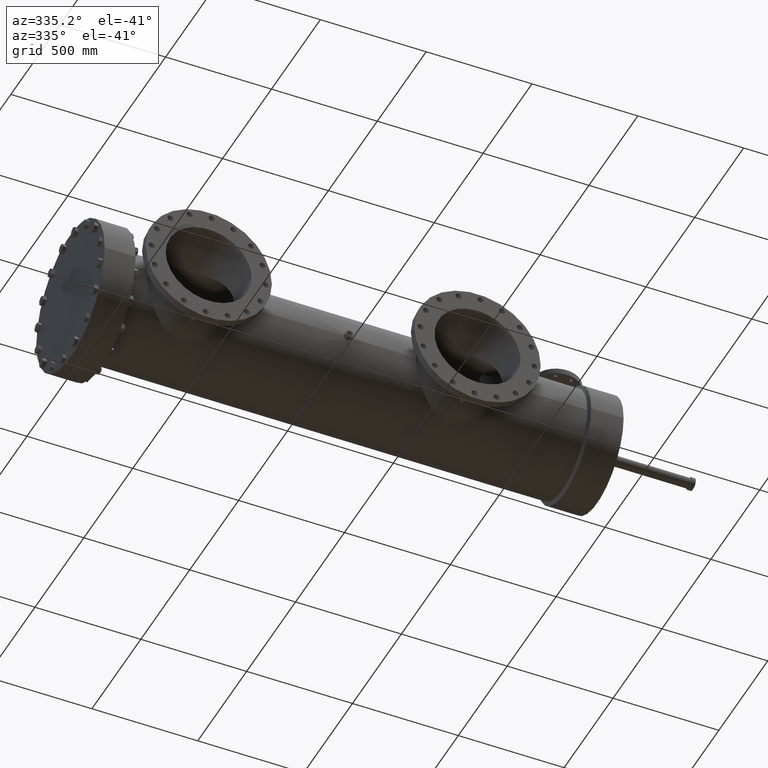
[diagram: clean part render]
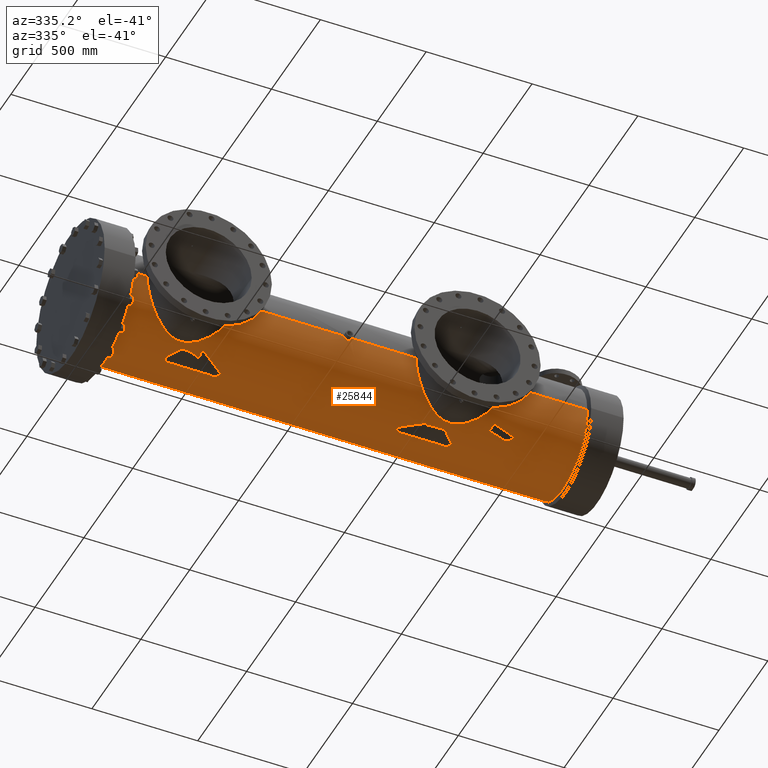
[diagram: same view with one face highlighted and labeled with its STEP entity id]
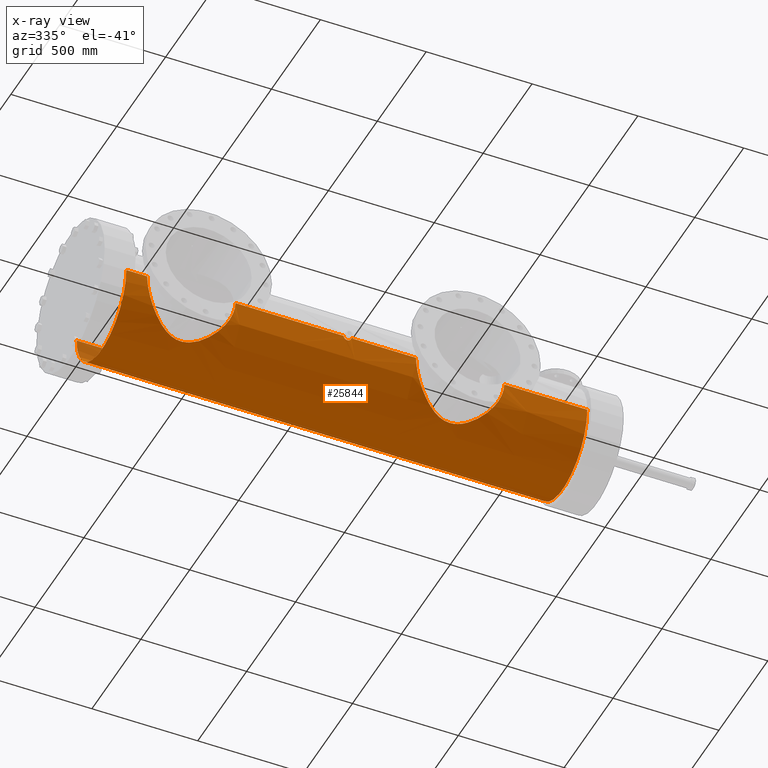
[diagram: x-ray of the same camera — body ghosted, the highlighted face saturated]
A machine part, auxiliary view. The second image highlights one B-rep face of the part: STEP entity #25844.
The next image is the same camera in x-ray: the body ghosted, the highlighted face saturated — about 1% of this face is hidden behind the body in this view.
In plain terms, the highlighted conical surface has half-angle 0.002 deg.
Its self-contained STEP definition (entity closure, byte-faithful):
#29 = B_SPLINE_CURVE_WITH_KNOTS ( 'NONE', 3,
 ( #11283, #11099, #74, #4449, #19770, #21856, #8823, #11572, #807, #26782, #718, #425, #20230, #13761, #519, #26575, #15941, #2689, #16043, #9378, #7099, #24626, #22414, #2981, #26875, #2880, #18193, #17814, #5095, #15749, #2784, #18005, #4996, #9289, #7192, #18106, #20421, #20318, #7285, #5192, #11666, #7370, #22600, #22509, #9571, #24529, #9478, #24705, #24803, #17909, #22223, #11764, #26970, #15656, #2597, #4804, #20040, #26674, #6999, #9199, #11475, #24434, #11377, #13574, #4900, #20139, #22311, #621, #15838, #24900, #12155, #20804, #9938, #25178, #16407, #16126, #18282, #18477, #893, #3081, #27343, #5488, #14323, #25276, #5285, #14126, #20704, #20511, #9665, #7468, #1276, #14222, #22877, #18577, #14042, #12250, #23072, #11866, #13952, #18674, #22787, #27057, #7856, #7656, #9746, #989, #12054, #7562, #18386, #16220, #3174, #5388, #20602, #16497 ),
 .UNSPECIFIED., .F., .F.,
 ( 4, 2, 2, 2, 2, 2, 2, 2, 2, 2, 2, 2, 2, 2, 2, 2, 2, 2, 2, 2, 2, 2, 2, 2, 2, 2, 2, 2, 2, 2, 2, 2, 2, 2, 2, 2, 2, 2, 2, 2, 2, 2, 2, 2, 2, 2, 2, 2, 2, 2, 2, 2, 2, 2, 2, 2, 4 ),
 ( 0.8713693908895384643, 0.8929450396197977646, 0.9037328639849274703, 0.9091267761674922676, 0.9145206883500571760, 0.9360963370803165873, 0.9576719858105758876, 0.9630658979931406849, 0.9684598101757054822, 0.9792476345408350769, 1.000823283271093933, 1.011611107636223528, 1.017005019818788103, 1.022398932001352900, 1.043974580731611423, 1.065550229461869947, 1.087125878192128248, 1.092519790374692823, 1.097913702557257398, 1.108701526922386771, 1.130277175652645294, 1.151852824382904039, 1.157246736565468614, 1.162640648748033190, 1.173428473113162784, 1.195004121843421085, 1.200398034025985883, 1.203094990117267837, 1.205791946208550236, 1.216579770573679165, 1.238155419303937022, 1.243549331486501597, 1.248943243669065950, 1.259731068034195101, 1.281306716764453180, 1.292094541129582330, 1.297488453312146905, 1.302882365494711703, 1.324458014224970226, 1.346033662955228971, 1.367609311685487494, 1.378397136050616867, 1.383791048233181442, 1.389184960415746239, 1.410760609146005207, 1.432336257876264174, 1.453911906606523141, 1.459305818789087716, 1.464699730971652514, 1.475487555336782108, 1.497063204067040854, 1.507851028432170448, 1.513244940614735246, 1.515941896706017422, 1.518638852797299599, 1.540214501527558788, 1.561790150257817755 ),
 .UNSPECIFIED. ) ;
#74 = CARTESIAN_POINT ( 'NONE',  ( 25.04258227525401992, -9.984429499507669448, -0.5681724033692350240 ) ) ;
#263 = CARTESIAN_POINT ( 'NONE',  ( 69.26970145456505179, -6.211192963183742144, -7.835085074222962298 ) ) ;
#353 = CARTESIAN_POINT ( 'NONE',  ( 74.32043129318704189, -9.403856222800763831, -3.397395944449030925 ) ) ;
#392 = CARTESIAN_POINT ( 'NONE',  ( 46.58271909959091772, 9.997409213623225099, 3.498753402234955712E-24 ) ) ;
#425 = CARTESIAN_POINT ( 'NONE',  ( 24.58025419720421212, -9.609077485617902425, -2.769542446875071562 ) ) ;
#477 = CARTESIAN_POINT ( 'NONE',  ( 46.51107058806089611, 9.992662031330105776, -0.3086187262714080171 ) ) ;
#519 = CARTESIAN_POINT ( 'NONE',  ( 24.31736591070994180, -9.399287005056866207, -3.404121265907334326 ) ) ;
#532 = CARTESIAN_POINT ( 'NONE',  ( 74.75091455061712509, -9.748782043694891541, -2.237411391602091459 ) ) ;
#543 = ORIENTED_EDGE ( 'NONE', *, *, #4490, .T. ) ;
#556 = CARTESIAN_POINT ( 'NONE',  ( 88.29844002135530445, 9.972609698192272276, -0.7301304226793970953 ) ) ;
#566 = CARTESIAN_POINT ( 'NONE',  ( 63.76040523100040502, 9.997318244773927276, -0.1250000000000000000 ) ) ;
#577 = CARTESIAN_POINT ( 'NONE',  ( 46.06685315842977957, 9.974614564402132899, -0.6744779164240018998 ) ) ;
#621 = CARTESIAN_POINT ( 'NONE',  ( 14.87986795427984710, -6.049017727904077546, -7.958728587519666497 ) ) ;
#632 = CARTESIAN_POINT ( 'NONE',  ( 72.78063522216659464, -8.234838348718620082, -5.674930648126665034 ) ) ;
#657 = CARTESIAN_POINT ( 'NONE',  ( 88.86467125672675138, 9.934434951888420073, -1.135821587627933171 ) ) ;
#687 = CARTESIAN_POINT ( 'NONE',  ( 89.74421197730220001, 9.939483294065041719, -1.090770426871632282 ) ) ;
#692 = B_SPLINE_CURVE_WITH_KNOTS ( 'NONE', 3,
 ( #12950, #1872, #17105, #8471, #10644, #4082, #23691, #25872, #10842, #13514, #2060, #22253, #11318, #7229, #11514, #556, #9230, #4839, #11412, #19587, #15781, #26054, #13702, #7133, #26715, #657, #17940, #4270, #19495, #26617, #21686, #8658 ),
 .UNSPECIFIED., .F., .F.,
 ( 4, 2, 2, 2, 2, 2, 2, 2, 2, 2, 2, 2, 2, 2, 2, 4 ),
 ( 0.1661977091169736520, 0.1721393783941883304, 0.1736247957134918751, 0.1751102130327954198, 0.1780810476714028701, 0.1810518823100103203, 0.1825372996293140593, 0.1840227169486177705, 0.1899643862258326987, 0.1929352208644406208, 0.1959060555030485151, 0.1988768901416564372, 0.2018477247802643593, 0.2077893940574814247, 0.2107602286960892912, 0.2137310633346971855 ),
 .UNSPECIFIED. ) ;
#718 = CARTESIAN_POINT ( 'NONE',  ( 24.74961834575157482, -9.745670436965387040, -2.242048021093386634 ) ) ;
#746 = CARTESIAN_POINT ( 'NONE',  ( 45.79523178119050897, 9.973372160174777790, -0.6924490802671346978 ) ) ;
#791 = EDGE_CURVE ( 'NONE', #16062, #14160, #17620, .T. ) ;
#807 = CARTESIAN_POINT ( 'NONE',  ( 24.89468540804755037, -9.863599371025992824, -1.626373763940307526 ) ) ;
#893 = CARTESIAN_POINT ( 'NONE',  ( 12.48625661218382277, -7.199979410269640390, -6.936721989181484638 ) ) ;
#898 = CARTESIAN_POINT ( 'NONE',  ( 45.84031605321151659, -9.973141171775868230, -0.6957403374980097865 ) ) ;
#908 = VERTEX_POINT ( 'NONE', #27914 ) ;
#989 = CARTESIAN_POINT ( 'NONE',  ( 8.876156136468882352, -9.822379192291680994, -1.854716190553077571 ) ) ;
#1000 = CARTESIAN_POINT ( 'NONE',  ( 46.45270866994054870, -9.989175828508496835, -0.4059715492640511569 ) ) ;
#1035 = VERTEX_POINT ( 'NONE', #17065 ) ;
#1084 = CARTESIAN_POINT ( 'NONE',  ( 45.40949329701826542, -9.984403724190821450, -0.5091117416235236837 ) ) ;
#1102 = CARTESIAN_POINT ( 'NONE',  ( 26.16040515592569449, 9.995806787867790533, -0.1250000000000000000 ) ) ;
#1276 = CARTESIAN_POINT ( 'NONE',  ( 10.26163878952082520, -8.733062294738832776, -4.869413594533933853 ) ) ;
#1314 = ORIENTED_EDGE ( 'NONE', *, *, #8514, .T. ) ;
#1341 = ORIENTED_EDGE ( 'NONE', *, *, #12400, .F. ) ;
#1353 = EDGE_CURVE ( 'NONE', #19688, #16018, #13002, .T. ) ;
#1392 = CARTESIAN_POINT ( 'NONE',  ( 59.66805453897379152, -9.192447745957380789, -3.932136361039828998 ) ) ;
#1472 = CARTESIAN_POINT ( 'NONE',  ( 4.759999999999957154, 9.995728141917426868, 0.0000000000000000000 ) ) ;
#1501 = CARTESIAN_POINT ( 'NONE',  ( 21.90963789888854407, 9.996156951118280176, -0.08333523380043933448 ) ) ;
#1578 = CARTESIAN_POINT ( 'NONE',  ( 59.97113035600815323, -8.956823436229100821, -4.448932170057765312 ) ) ;
#1657 = DIRECTION ( 'NONE',  ( 0.9999999991921737497, 4.019517957304389119E-05, 0.0000000000000000000 ) ) ;
#1665 = CARTESIAN_POINT ( 'NONE',  ( 63.76197489938812879, -6.509340679743138125, -7.588933183691405127 ) ) ;
#1750 = ORIENTED_EDGE ( 'NONE', *, *, #16373, .T. ) ;
#1757 = CARTESIAN_POINT ( 'NONE',  ( 59.01127450612060699, -9.714907295486176153, -2.365840850541558460 ) ) ;
#1820 = AXIS2_PLACEMENT_3D ( 'NONE', #16154, #3110, #27178 ) ;
#1872 = CARTESIAN_POINT ( 'NONE',  ( 88.05320416688614671, 9.999076127218835097, -0.07813825553669928592 ) ) ;
#2060 = CARTESIAN_POINT ( 'NONE',  ( 88.17572177663912214, 9.985140302233238785, -0.5289508139776103457 ) ) ;
#2079 = ORIENTED_EDGE ( 'NONE', *, *, #12445, .F. ) ;
#2170 = ORIENTED_EDGE ( 'NONE', *, *, #22558, .F. ) ;
#2262 = DIRECTION ( 'NONE',  ( 0.9999999991921737497, 4.019517957304389119E-05, 0.0000000000000000000 ) ) ;
#2285 = CARTESIAN_POINT ( 'NONE',  ( 68.01193109096080036, 9.998270564648024106, 0.0000000000000000000 ) ) ;
#2301 = CARTESIAN_POINT ( 'NONE',  ( 45.18901831218933296, 9.997353193569759711, 3.637058732279452058E-23 ) ) ;
#2361 = VERTEX_POINT ( 'NONE', #5840 ) ;
#2393 = CARTESIAN_POINT ( 'NONE',  ( 26.16040515592569449, 9.995806787867790533, -0.1250000000000000000 ) ) ;
#2427 = CARTESIAN_POINT ( 'NONE',  ( 74.48524615466374144, -9.534922229769088986, -3.021014756897983045 ) ) ;
#2494 = LINE ( 'NONE', #2534, #10683 ) ;
#2534 = CARTESIAN_POINT ( 'NONE',  ( 4.759999999999957154, 9.995728141917426868, 0.0000000000000000000 ) ) ;
#2597 = CARTESIAN_POINT ( 'NONE',  ( 17.40464047621242116, -5.747277580413180154, -8.178848184218423967 ) ) ;
#2606 = CARTESIAN_POINT ( 'NONE',  ( 73.32696564263906680, -8.636893151936128277, -5.037590728342087765 ) ) ;
#2646 = EDGE_CURVE ( 'NONE', #14160, #908, #23404, .T. ) ;
#2650 = CARTESIAN_POINT ( 'NONE',  ( 46.58160912788618191, 9.997331608381314183, -0.04554198297616488672 ) ) ;
#2660 = CARTESIAN_POINT ( 'NONE',  ( 89.32827860397752318, 9.927240174281202201, -1.196850393700795712 ) ) ;
#2689 = CARTESIAN_POINT ( 'NONE',  ( 24.13985706030984346, -9.259026885958020259, -3.770611314273344838 ) ) ;
#2698 = CARTESIAN_POINT ( 'NONE',  ( 72.95494875363647225, -8.361262980640878695, -5.487531358648152668 ) ) ;
#2754 = CARTESIAN_POINT ( 'NONE',  ( 89.63537918991916342, 9.934657099443240824, -1.133805642510335554 ) ) ;
#2784 = CARTESIAN_POINT ( 'NONE',  ( 22.21853781402447936, -7.837574484352123783, -6.208367006149152267 ) ) ;
#2796 = CARTESIAN_POINT ( 'NONE',  ( 70.31214681154639834, -6.682034294646674866, -7.439195624437241250 ) ) ;
#2817 = CARTESIAN_POINT ( 'NONE',  ( 45.53777929846206973, 9.979103819731221847, -0.6041139128197966501 ) ) ;
#2850 = CARTESIAN_POINT ( 'NONE',  ( 89.84833945360563234, 9.945258999628826757, -1.036770552188962746 ) ) ;
#2855 = B_SPLINE_CURVE_WITH_KNOTS ( 'NONE', 3,
 ( #7165, #2660, #13636, #13730, #22565, #20284, #15810, #2754, #9351, #687, #7253, #24598, #2850, #18078, #22481, #18165, #9449, #20387, #7345, #25056, #7921, #3233, #11931, #18743, #5550, #27027, #20951, #10001, #20771, #9908, #7533, #20672, #18444, #18350 ),
 .UNSPECIFIED., .F., .F.,
 ( 4, 2, 2, 2, 2, 2, 2, 2, 2, 2, 2, 2, 2, 2, 2, 2, 4 ),
 ( 0.02348922547163625335, 0.02943679534206875004, 0.03092368780967622716, 0.03241058027728370428, 0.03538436521249992139, 0.03835815014771613851, 0.03984504261532424707, 0.04133193508293236257, 0.04727950495336154940, 0.05025328988857660772, 0.05174018235618414729, 0.05322707482379167993, 0.05917464469422031165, 0.06066153716182772632, 0.06214842962943514099, 0.06512221456464996339, 0.07106978443507987186 ),
 .UNSPECIFIED. ) ;
#2868 = DIRECTION ( 'NONE',  ( 0.0000000000000000000, -1.000000000000000000, 0.0000000000000000000 ) ) ;
#2880 = CARTESIAN_POINT ( 'NONE',  ( 23.19790627899974211, -8.538331828646162691, -5.199018151846304114 ) ) ;
#2894 = CARTESIAN_POINT ( 'NONE',  ( 68.27400569921648810, -5.891392243685015906, -8.078743035951871931 ) ) ;
#2912 = CARTESIAN_POINT ( 'NONE',  ( 45.18901831218933296, 9.997353193569759711, -0.02271142216015559559 ) ) ;
#2981 = CARTESIAN_POINT ( 'NONE',  ( 23.32015558271065814, -8.629466929012632903, -5.046321995839336161 ) ) ;
#2986 = CARTESIAN_POINT ( 'NONE',  ( 45.77191325438815994, -9.973686748478025166, -0.6878458084828197316 ) ) ;
#2990 = CARTESIAN_POINT ( 'NONE',  ( 67.00292514416292988, -5.725054314649185017, -8.196850393700787052 ) ) ;
#3006 = CARTESIAN_POINT ( 'NONE',  ( 45.84043055386577947, 9.973063418052605655, -0.6968503937007890503 ) ) ;
#3044 = DIRECTION ( 'NONE',  ( 1.000000000000000000, 7.582751577510925543E-17, 0.0000000000000000000 ) ) ;
#3081 = CARTESIAN_POINT ( 'NONE',  ( 12.06779424753076668, -7.461593928833218037, -6.654479336119714539 ) ) ;
#3096 = CARTESIAN_POINT ( 'NONE',  ( 46.55940321910829738, -9.995807944901164532, -0.1802149180669533057 ) ) ;
#3106 = EDGE_CURVE ( 'NONE', #15271, #6533, #13446, .T. ) ;
#3110 = DIRECTION ( 'NONE',  ( -1.000000000000000000, -7.582751577510925543E-17, -0.0000000000000000000 ) ) ;
#3114 = CARTESIAN_POINT ( 'NONE',  ( 89.25005456058693198, 9.927237007283057579, -1.196850393700795490 ) ) ;
#3174 = CARTESIAN_POINT ( 'NONE',  ( 8.736475727175248451, -9.936235972714930753, -1.126120661421989411 ) ) ;
#3233 = CARTESIAN_POINT ( 'NONE',  ( 90.22314165273631659, 9.974847327407875497, -0.6970936334414524760 ) ) ;
#3361 = CARTESIAN_POINT ( 'NONE',  ( 45.66157587123907291, -9.975488732136163605, -0.6613486602044135187 ) ) ;
#3400 = ORIENTED_EDGE ( 'NONE', *, *, #2646, .F. ) ;
#3518 = EDGE_CURVE ( 'NONE', #1035, #9862, #22390, .T. ) ;
#3571 = CARTESIAN_POINT ( 'NONE',  ( 59.39592468813528825, -9.406850191402895689, -3.389244860612429910 ) ) ;
#3674 = CARTESIAN_POINT ( 'NONE',  ( 58.91856683177815057, -9.789985617526424377, -2.029550061242539449 ) ) ;
#3691 = ORIENTED_EDGE ( 'NONE', *, *, #791, .F. ) ;
#3770 = CARTESIAN_POINT ( 'NONE',  ( 63.88463835643118927, -6.451861072731520430, -7.637866864546854373 ) ) ;
#3866 = CARTESIAN_POINT ( 'NONE',  ( 59.23386894311486373, -9.535780062430323056, -3.016048052649081157 ) ) ;
#3957 = CARTESIAN_POINT ( 'NONE',  ( 58.84610020972802147, -9.848865546292145723, -1.720213698645928657 ) ) ;
#3997 = VECTOR ( 'NONE', #25049, 39.37007874015748143 ) ;
#4082 = CARTESIAN_POINT ( 'NONE',  ( 88.09381608049910994, 9.994296871921854120, -0.3097621627549704826 ) ) ;
#4270 = CARTESIAN_POINT ( 'NONE',  ( 89.05422906771859459, 9.929086414321693255, -1.181367973656631820 ) ) ;
#4316 = EDGE_CURVE ( 'NONE', #11471, #19688, #10385, .T. ) ;
#4449 = CARTESIAN_POINT ( 'NONE',  ( 24.99822600027672337, -9.948121762532407431, -0.9929304356304047285 ) ) ;
#4490 = EDGE_CURVE ( 'NONE', #27013, #10138, #20604, .T. ) ;
#4612 = ORIENTED_EDGE ( 'NONE', *, *, #18013, .T. ) ;
#4728 = CARTESIAN_POINT ( 'NONE',  ( 74.82259008013477342, -9.806956177294534172, -1.967982493024983848 ) ) ;
#4804 = CARTESIAN_POINT ( 'NONE',  ( 17.33270844432958313, -5.740908693099136428, -8.183316368054274648 ) ) ;
#4817 = CARTESIAN_POINT ( 'NONE',  ( 74.89538513489432603, -9.866206106249698848, -1.622907147013239904 ) ) ;
#4834 = CARTESIAN_POINT ( 'NONE',  ( 45.47986113987199275, 9.981291647173673454, -0.5668195717459937333 ) ) ;
#4839 = CARTESIAN_POINT ( 'NONE',  ( 88.43187801854766406, 9.960824130661928066, -0.8744102009187888491 ) ) ;
#4857 = CARTESIAN_POINT ( 'NONE',  ( 46.23477414983292277, 9.979160255479616382, -0.6036463017855694391 ) ) ;
#4900 = CARTESIAN_POINT ( 'NONE',  ( 15.62960729638286494, -5.851959430203588219, -8.104211839205074597 ) ) ;
#4907 = CARTESIAN_POINT ( 'NONE',  ( 71.36920667040162414, -7.287424132588163239, -6.845721637786085445 ) ) ;
#4925 = CARTESIAN_POINT ( 'NONE',  ( 45.25069282145864236, 9.993242351374384214, -0.2875271237568212124 ) ) ;
#4949 = CARTESIAN_POINT ( 'NONE',  ( 45.90859807339378307, 9.973066164738870754, -0.6968503937007891613 ) ) ;
#4996 = CARTESIAN_POINT ( 'NONE',  ( 21.62093971440506124, -7.441370007627665650, -6.677700433403026992 ) ) ;
#5008 = CARTESIAN_POINT ( 'NONE',  ( 72.41774124923352929, -7.977919187671639989, -6.030747403005739748 ) ) ;
#5029 = CARTESIAN_POINT ( 'NONE',  ( 45.28213356810031343, 9.991292475729029121, -0.3487523672459326707 ) ) ;
#5095 = CARTESIAN_POINT ( 'NONE',  ( 22.77192305725401411, -8.226126769377087200, -5.684026788614029435 ) ) ;
#5130 = CARTESIAN_POINT ( 'NONE',  ( 45.51801331677641116, 9.979814079038108687, -0.5922912993437354778 ) ) ;
#5180 = CARTESIAN_POINT ( 'NONE',  ( 90.51477509784288600, 6.900883999785464051E-15, 0.0000000000000000000 ) ) ;
#5192 = CARTESIAN_POINT ( 'NONE',  ( 20.52647038090841392, -6.792908744597833781, -7.335832803535463853 ) ) ;
#5204 = CARTESIAN_POINT ( 'NONE',  ( 67.64649585522114705, -5.778382721310741488, -8.159385845548904115 ) ) ;
#5224 = CARTESIAN_POINT ( 'NONE',  ( 45.26054999502161991, 9.992619044204305467, -0.3083842410037940240 ) ) ;
#5285 = CARTESIAN_POINT ( 'NONE',  ( 11.28513678839077627, -7.988426710595213365, -6.008979288429924459 ) ) ;
#5290 = CARTESIAN_POINT ( 'NONE',  ( 45.88586870589012534, -9.973065248900329749, -0.6968503937007893834 ) ) ;
#5305 = CARTESIAN_POINT ( 'NONE',  ( 45.93139165573457916, -9.973067083164826485, -0.6968503937007899385 ) ) ;
#5388 = CARTESIAN_POINT ( 'NONE',  ( 8.678312420434419749, -9.983844994099696279, -0.5654426981465594526 ) ) ;
#5403 = CARTESIAN_POINT ( 'NONE',  ( 46.56492857832056842, -9.996183221722928280, -0.1580968330644789144 ) ) ;
#5488 = CARTESIAN_POINT ( 'NONE',  ( 11.57116008189552758, -7.791242382742264994, -6.263176399219755552 ) ) ;
#5492 = CARTESIAN_POINT ( 'NONE',  ( 45.47989322087320829, -9.981290760253983763, -0.5668321224962068472 ) ) ;
#5502 = CARTESIAN_POINT ( 'NONE',  ( 45.88586870589012534, -9.973065248900329749, -0.6968503937007893834 ) ) ;
#5511 = EDGE_CURVE ( 'NONE', #18457, #12316, #2494, .T. ) ;
#5550 = CARTESIAN_POINT ( 'NONE',  ( 90.32553401019688977, 9.985322434208217857, -0.5309799816473720346 ) ) ;
#5589 = CARTESIAN_POINT ( 'NONE',  ( 46.11012791792965260, -9.975571425219351696, -0.6601743158840259751 ) ) ;
#5685 = CARTESIAN_POINT ( 'NONE',  ( 46.17349541865753082, -9.977201563434483944, -0.6351274303910663388 ) ) ;
#5793 = CARTESIAN_POINT ( 'NONE',  ( 65.30857547276040975, -5.930135074296805975, -8.049783188768396158 ) ) ;
#5840 = CARTESIAN_POINT ( 'NONE',  ( 26.16040515592569449, 9.995806787867790533, -0.1250000000000000000 ) ) ;
#5967 = EDGE_CURVE ( 'NONE', #10863, #19995, #26287, .T. ) ;
#5976 = CARTESIAN_POINT ( 'NONE',  ( 63.39864128809526278, -6.686802493123974678, -7.434588382257121708 ) ) ;
#6073 = CARTESIAN_POINT ( 'NONE',  ( 59.13748043045085723, -9.613134806456598014, -2.760381743716013858 ) ) ;
#6173 = CARTESIAN_POINT ( 'NONE',  ( 58.67837330789093642, -9.985807161244826702, -0.5666136670329896541 ) ) ;
#6324 = CARTESIAN_POINT ( 'NONE',  ( 68.01244638433722400, 9.997489169690656041, -0.1250000000000000000 ) ) ;
#6533 = VERTEX_POINT ( 'NONE', #26708 ) ;
#6698 = CARTESIAN_POINT ( 'NONE',  ( 4.759999999999957154, 9.995728141917426868, 0.0000000000000000000 ) ) ;
#6711 =( BOUNDED_CURVE ( )  B_SPLINE_CURVE ( 3, ( #19898, #22551, #26627, #566 ),
 .UNSPECIFIED., .F., .T. ) 
 B_SPLINE_CURVE_WITH_KNOTS ( ( 4, 4 ),
 ( 0.0000000000000000000, 0.01250303299148771731 ),
 .UNSPECIFIED. ) 
 CURVE ( )  GEOMETRIC_REPRESENTATION_ITEM ( )  RATIONAL_B_SPLINE_CURVE ( ( 1.000000000000000000, 0.9999869728895944831, 0.9999869728895944831, 1.000000000000000000 ) ) 
 REPRESENTATION_ITEM ( '' )  );
#6794 = CARTESIAN_POINT ( 'NONE',  ( 63.76092056051588486, 9.998099694516247027, 0.0000000000000000000 ) ) ;
#6818 = DIRECTION ( 'NONE',  ( 0.9999999991921737497, 4.019517957304389119E-05, 0.0000000000000000000 ) ) ;
#6830 = CARTESIAN_POINT ( 'NONE',  ( 74.26297984359970883, -9.358343749019981672, -3.520819103424792651 ) ) ;
#6914 = CARTESIAN_POINT ( 'NONE',  ( 74.23360680107140297, -9.335123816902729743, -3.581912596821872352 ) ) ;
#6986 = CARTESIAN_POINT ( 'NONE',  ( 64.24630429664765074, 9.997337777100725020, -0.1250000000000000000 ) ) ;
#6988 = CARTESIAN_POINT ( 'NONE',  ( 46.58271909959091772, -9.997409213623219770, 1.224329616416488096E-15 ) ) ;
#6999 = CARTESIAN_POINT ( 'NONE',  ( 16.97409858993480825, -5.720890785416584912, -8.197304769219549314 ) ) ;
#7099 = CARTESIAN_POINT ( 'NONE',  ( 23.74113732672881483, -8.948483686436224716, -4.462493700388457718 ) ) ;
#7133 = CARTESIAN_POINT ( 'NONE',  ( 88.72004363769806901, 9.941294137066421399, -1.073813823562016490 ) ) ;
#7155 = CARTESIAN_POINT ( 'NONE',  ( 46.48950290434012800, 9.991334945372123855, -0.3489250150632721703 ) ) ;
#7165 = CARTESIAN_POINT ( 'NONE',  ( 89.25005456058693198, 9.927237007283057579, -1.196850393700795490 ) ) ;
#7192 = CARTESIAN_POINT ( 'NONE',  ( 21.30177648947374536, -7.243113194911280139, -6.889661362786828391 ) ) ;
#7203 = CARTESIAN_POINT ( 'NONE',  ( 70.54302008562689252, -6.804831579295877120, -7.327519188545370099 ) ) ;
#7223 = CARTESIAN_POINT ( 'NONE',  ( 45.40910518243588712, 9.984422272625479877, -0.5087475459729572380 ) ) ;
#7229 = CARTESIAN_POINT ( 'NONE',  ( 88.23317276278962140, 9.979136482737148484, -0.6314972384099435398 ) ) ;
#7253 = CARTESIAN_POINT ( 'NONE',  ( 89.77948923527560510, 9.941306426397805041, -1.074095665902351948 ) ) ;
#7285 = CARTESIAN_POINT ( 'NONE',  ( 20.86430455719275301, -6.982908329415113080, -7.153615441249039364 ) ) ;
#7345 = CARTESIAN_POINT ( 'NONE',  ( 90.15003417570001432, 9.967953763206224949, -0.7899609077229097220 ) ) ;
#7370 = CARTESIAN_POINT ( 'NONE',  ( 19.81605805246791618, -6.436615565838628150, -7.649872216745532860 ) ) ;
#7375 = CARTESIAN_POINT ( 'NONE',  ( 45.28172049846400427, -9.991317519888035292, -0.3480271503200852434 ) ) ;
#7468 = CARTESIAN_POINT ( 'NONE',  ( 10.41790554195044294, -8.615416855903079707, -5.074143996338532858 ) ) ;
#7483 = CARTESIAN_POINT ( 'NONE',  ( 46.34635485423522994, -9.983657538853211832, -0.5249927018550026858 ) ) ;
#7533 = CARTESIAN_POINT ( 'NONE',  ( 90.41631218398202918, 9.995552599174121866, -0.2716946388868141105 ) ) ;
#7562 = CARTESIAN_POINT ( 'NONE',  ( 8.852846555480470059, -9.841335424746866067, -1.751347018393103250 ) ) ;
#7574 = CARTESIAN_POINT ( 'NONE',  ( 46.23423146989619426, -9.979141423623902440, -0.6039561175055426778 ) ) ;
#7632 = VECTOR ( 'NONE', #13355, 39.37007874015748143 ) ;
#7656 = CARTESIAN_POINT ( 'NONE',  ( 8.917526105145217485, -9.788777637481375749, -2.025468515925798574 ) ) ;
#7661 = CARTESIAN_POINT ( 'NONE',  ( 45.57735303280936989, -9.977803347839781622, -0.6252516922625510620 ) ) ;
#7676 = CARTESIAN_POINT ( 'NONE',  ( 46.39455847050505355, -9.986037603534260398, -0.4768136787377319497 ) ) ;
#7856 = CARTESIAN_POINT ( 'NONE',  ( 8.971023743493345748, -9.745403320258519742, -2.228037854856386168 ) ) ;
#7870 = CARTESIAN_POINT ( 'NONE',  ( 46.54610045322371548, -9.994919859592219069, -0.2240986323089759757 ) ) ;
#7885 = CARTESIAN_POINT ( 'NONE',  ( 58.66364184747908439, -9.997894808482866935, -0.2841154331938945954 ) ) ;
#7921 = CARTESIAN_POINT ( 'NONE',  ( 90.19970142177992045, 9.972586978064096996, -0.7287035485838718740 ) ) ;
#7967 = EDGE_CURVE ( 'NONE', #26421, #20850, #8521, .T. ) ;
#7978 = CARTESIAN_POINT ( 'NONE',  ( 61.87716069754356596, -7.588440171659996736, -6.513005750189354792 ) ) ;
#8074 = CARTESIAN_POINT ( 'NONE',  ( 68.01244638433722400, 9.997489169690656041, -0.1250000000000000000 ) ) ;
#8094 = VECTOR ( 'NONE', #24474, 39.37007874015748143 ) ;
#8156 = ORIENTED_EDGE ( 'NONE', *, *, #4316, .T. ) ;
#8161 = ORIENTED_EDGE ( 'NONE', *, *, #5511, .T. ) ;
#8172 = CARTESIAN_POINT ( 'NONE',  ( 61.15578967957596745, -8.081716909160650886, -5.886323147781787668 ) ) ;
#8267 = CARTESIAN_POINT ( 'NONE',  ( 59.54259849948524419, -9.290935447136360992, -3.693418792008050122 ) ) ;
#8296 = AXIS2_PLACEMENT_3D ( 'NONE', #13918, #3044, #11441 ) ;
#8471 = CARTESIAN_POINT ( 'NONE',  ( 88.07990994109559324, 9.995915065568004465, -0.2521881761552802192 ) ) ;
#8514 = EDGE_CURVE ( 'NONE', #9862, #26421, #22752, .T. ) ;
#8521 = LINE ( 'NONE', #17450, #23147 ) ;
#8658 = CARTESIAN_POINT ( 'NONE',  ( 89.25005456058693198, 9.927237007283057579, -1.196850393700795490 ) ) ;
#8699 = CARTESIAN_POINT ( 'NONE',  ( 90.44690495428773147, 9.999172342451904782, 5.251453257559466675E-24 ) ) ;
#8736 = EDGE_CURVE ( 'NONE', #20850, #8962, #692, .T. ) ;
#8823 = CARTESIAN_POINT ( 'NONE',  ( 24.93427829764577552, -9.895878034270056745, -1.416827611931692044 ) ) ;
#8962 = VERTEX_POINT ( 'NONE', #3114 ) ;
#9055 = CARTESIAN_POINT ( 'NONE',  ( 46.11028317609866178, 9.975509763242527583, -0.6613036536945940957 ) ) ;
#9091 = CARTESIAN_POINT ( 'NONE',  ( 45.88586870589012534, 9.973065248900333302, -0.6968503937007893834 ) ) ;
#9114 = CARTESIAN_POINT ( 'NONE',  ( 73.88608073012939315, -9.062785445698306575, -4.230894021720081888 ) ) ;
#9154 = CIRCLE ( 'NONE', #1820, 9.995728141917426868 ) ;
#9193 = LINE ( 'NONE', #27470, #12591 ) ;
#9199 = CARTESIAN_POINT ( 'NONE',  ( 16.54608311869036186, -5.723035025606835191, -8.195787045875782439 ) ) ;
#9230 = CARTESIAN_POINT ( 'NONE',  ( 88.34819901139654519, 9.967926736931335796, -0.7907769517038868434 ) ) ;
#9251 = CARTESIAN_POINT ( 'NONE',  ( 46.43996030493232041, 9.988436274253832181, -0.4250208130956282804 ) ) ;
#9289 = CARTESIAN_POINT ( 'NONE',  ( 21.35542607328227049, -7.276143403433207979, -6.854779383734000753 ) ) ;
#9295 = CARTESIAN_POINT ( 'NONE',  ( 74.98006851705288511, -9.935291338731136790, -1.131901251752948978 ) ) ;
#9339 = VECTOR ( 'NONE', #17507, 39.37007874015748143 ) ;
#9340 = CARTESIAN_POINT ( 'NONE',  ( 46.47779530845249241, 9.990631850437088346, -0.3684267885253509345 ) ) ;
#9351 = CARTESIAN_POINT ( 'NONE',  ( 89.67215694072353926, 9.936158669198269067, -1.120625386699508175 ) ) ;
#9378 = CARTESIAN_POINT ( 'NONE',  ( 23.88138440611788837, -9.056924144385364528, -4.238713974312926958 ) ) ;
#9393 = CARTESIAN_POINT ( 'NONE',  ( 71.20814291350160374, -7.188871549945517359, -6.949126369932221436 ) ) ;
#9449 = CARTESIAN_POINT ( 'NONE',  ( 90.04096817873001157, 9.958573823944320225, -0.9016604646194512629 ) ) ;
#9478 = CARTESIAN_POINT ( 'NONE',  ( 18.98671954545418927, -6.103656498866209645, -7.916576840076854360 ) ) ;
#9490 = CARTESIAN_POINT ( 'NONE',  ( 67.14583153514394098, -5.730387002439212729, -8.193140680903029605 ) ) ;
#9506 = CARTESIAN_POINT ( 'NONE',  ( 45.29384408141212504, 9.990590044410726733, -0.3682691732760743353 ) ) ;
#9571 = CARTESIAN_POINT ( 'NONE',  ( 19.18347887673273533, -6.174980135497341038, -7.861088967040783082 ) ) ;
#9575 = CARTESIAN_POINT ( 'NONE',  ( 45.21236715565714803, -9.995751587294117613, -0.1803267736467384641 ) ) ;
#9665 = CARTESIAN_POINT ( 'NONE',  ( 10.74701655577346493, -8.372176159556275366, -5.466193896726582402 ) ) ;
#9670 = CARTESIAN_POINT ( 'NONE',  ( 45.20676177073307400, -9.996131814054834308, -0.1579128070615113677 ) ) ;
#9680 = CARTESIAN_POINT ( 'NONE',  ( 46.31124458663110488, -9.982076992847137120, -0.5538637834224688916 ) ) ;
#9707 = EDGE_CURVE ( 'NONE', #14131, #12316, #16381, .T. ) ;
#9746 = CARTESIAN_POINT ( 'NONE',  ( 8.900489353506175760, -9.802607226202919577, -1.957464078866419044 ) ) ;
#9751 = CARTESIAN_POINT ( 'NONE',  ( 45.22562000848768093, -9.994867905597629942, -0.2240395970324225439 ) ) ;
#9761 = CARTESIAN_POINT ( 'NONE',  ( 46.06640943150291889, -9.974682595591705336, -0.6734444059703372787 ) ) ;
#9795 = EDGE_CURVE ( 'NONE', #11471, #18534, #9154, .T. ) ;
#9845 = CARTESIAN_POINT ( 'NONE',  ( 45.36074502776531858, -9.986806781442181702, -0.4603877622362945732 ) ) ;
#9851 = EDGE_CURVE ( 'NONE', #6533, #908, #17129, .T. ) ;
#9862 = VERTEX_POINT ( 'NONE', #8074 ) ;
#9872 = CARTESIAN_POINT ( 'NONE',  ( 66.29025433300068926, -5.746551175866995820, -8.181917877410583628 ) ) ;
#9908 = CARTESIAN_POINT ( 'NONE',  ( 90.40681723330170882, 9.994445233078703694, -0.3096783056587635863 ) ) ;
#9938 = CARTESIAN_POINT ( 'NONE',  ( 13.86530138332451578, -6.457693294092951675, -7.630303261115486180 ) ) ;
#10001 = CARTESIAN_POINT ( 'NONE',  ( 90.38346456783668259, 9.991772627547556240, -0.3849957500255703491 ) ) ;
#10054 = CARTESIAN_POINT ( 'NONE',  ( 59.83135442925340186, -9.064910612418350055, -4.225112940630696201 ) ) ;
#10066 = CARTESIAN_POINT ( 'NONE',  ( 4.759999999999957154, 9.995728141917426868, 0.0000000000000000000 ) ) ;
#10138 = VERTEX_POINT ( 'NONE', #11707 ) ;
#10156 = CARTESIAN_POINT ( 'NONE',  ( 64.64095839113008424, -6.135623814814638699, -7.895161886465057677 ) ) ;
#10247 = CARTESIAN_POINT ( 'NONE',  ( 61.58196759795880837, -7.786487538249711626, -6.272292576673438091 ) ) ;
#10336 = CARTESIAN_POINT ( 'NONE',  ( 61.20181685159583651, -8.049290992038113046, -5.930584397361493565 ) ) ;
#10385 = LINE ( 'NONE', #1472, #17198 ) ;
#10387 = B_SPLINE_CURVE_WITH_KNOTS ( 'NONE', 3,
 ( #19158, #19441, #12529, #19064, #15534, #26362, #2393 ),
 .UNSPECIFIED., .F., .F.,
 ( 4, 3, 4 ),
 ( 0.1897759665906967042, 0.2017751882703826272, 0.2977541826648572032 ),
 .UNSPECIFIED. ) ;
#10428 = CARTESIAN_POINT ( 'NONE',  ( 60.92832096990767354, -8.242908127961870335, -5.662411378671534656 ) ) ;
#10644 = CARTESIAN_POINT ( 'NONE',  ( 88.08423563983281213, 9.995409376119573253, -0.2714889764284601492 ) ) ;
#10683 = VECTOR ( 'NONE', #2262, 39.37007874015748143 ) ;
#10811 = LINE ( 'NONE', #24956, #3997 ) ;
#10823 = ORIENTED_EDGE ( 'NONE', *, *, #24748, .F. ) ;
#10842 = CARTESIAN_POINT ( 'NONE',  ( 88.12928041557584891, 9.990247700371645223, -0.4217036730444990722 ) ) ;
#10863 = VERTEX_POINT ( 'NONE', #19258 ) ;
#11099 = CARTESIAN_POINT ( 'NONE',  ( 25.05734263488064784, -9.996543997250148195, -0.2843906761581976306 ) ) ;
#11150 = CARTESIAN_POINT ( 'NONE',  ( 46.25428610994165268, 9.979864853125480550, -0.5919325736015815798 ) ) ;
#11201 = CARTESIAN_POINT ( 'NONE',  ( 69.20521191229408942, -6.186442127525795698, -7.854631974238985848 ) ) ;
#11246 = CARTESIAN_POINT ( 'NONE',  ( 46.17354888717856909, 9.977202871694187181, -0.6351075191664525832 ) ) ;
#11283 = CARTESIAN_POINT ( 'NONE',  ( 25.05734263488064428, -9.996543997250146418, 1.003805526232174753E-15 ) ) ;
#11286 = CARTESIAN_POINT ( 'NONE',  ( 88.05320416688614671, 9.999076127218833321, -2.413168989593410149E-24 ) ) ;
#11294 = CARTESIAN_POINT ( 'NONE',  ( 73.44581966379506355, -8.726123027595074078, -4.882498130982028783 ) ) ;
#11318 = CARTESIAN_POINT ( 'NONE',  ( 88.21298116893889585, 9.981213420194075425, -0.5977592601929537786 ) ) ;
#11377 = CARTESIAN_POINT ( 'NONE',  ( 15.84024684550263373, -5.811305745784811627, -8.133416982425496045 ) ) ;
#11388 = CARTESIAN_POINT ( 'NONE',  ( 74.93481396872314804, -9.898345230582316745, -1.413764532954910669 ) ) ;
#11412 = CARTESIAN_POINT ( 'NONE',  ( 88.46103948279080953, 9.958465688365375712, -0.9007943123520988360 ) ) ;
#11441 = DIRECTION ( 'NONE',  ( -5.466030998198451542E-17, 1.000000000000000000, 0.0000000000000000000 ) ) ;
#11471 = VERTEX_POINT ( 'NONE', #10066 ) ;
#11475 = CARTESIAN_POINT ( 'NONE',  ( 16.26263114964206480, -5.745902985309768063, -8.179925249280618260 ) ) ;
#11514 = CARTESIAN_POINT ( 'NONE',  ( 88.24374280681260529, 9.978064469533883596, -0.6482095584365147323 ) ) ;
#11572 = CARTESIAN_POINT ( 'NONE',  ( 24.90845882113970333, -9.874822839247828554, -1.556809460198970818 ) ) ;
#11583 = CARTESIAN_POINT ( 'NONE',  ( 69.58915323556936983, -6.337892279420645814, -7.733991077946164694 ) ) ;
#11666 = CARTESIAN_POINT ( 'NONE',  ( 20.29478188427371421, -6.670036037179261967, -7.447252435947659066 ) ) ;
#11695 = CARTESIAN_POINT ( 'NONE',  ( 45.33166165474521137, 9.988398120181207318, -0.4248699692299974795 ) ) ;
#11707 = CARTESIAN_POINT ( 'NONE',  ( 90.51477509784288600, -9.999175070504502827, 1.224545774420735612E-15 ) ) ;
#11764 = CARTESIAN_POINT ( 'NONE',  ( 17.61925150186431210, -5.771253903324563339, -8.161966543017573628 ) ) ;
#11866 = CARTESIAN_POINT ( 'NONE',  ( 9.449742999094588924, -9.362043463349110084, -3.505324207244177259 ) ) ;
#11870 = CARTESIAN_POINT ( 'NONE',  ( 45.18901831218934717, -9.997353193569752605, -0.04549820097007882536 ) ) ;
#11882 = CARTESIAN_POINT ( 'NONE',  ( 46.13154180940711058, -9.976078561610910000, -0.6525034137388833200 ) ) ;
#11931 = CARTESIAN_POINT ( 'NONE',  ( 90.23443164893873814, 9.975956455712157833, -0.6810546228174541028 ) ) ;
#11971 = CARTESIAN_POINT ( 'NONE',  ( 46.53831761893339802, -9.994406854944044127, -0.2458278415775916048 ) ) ;
#12054 = CARTESIAN_POINT ( 'NONE',  ( 8.868248754326693017, -9.828807752958750754, -1.820343333931158991 ) ) ;
#12069 = CARTESIAN_POINT ( 'NONE',  ( 46.58271909959091772, -9.997409213623223323, -0.04596645966936801359 ) ) ;
#12117 = EDGE_CURVE ( 'NONE', #17994, #16062, #25154, .T. ) ;
#12155 = CARTESIAN_POINT ( 'NONE',  ( 14.11246954346855098, -6.346111415272395639, -7.723612670910854128 ) ) ;
#12250 = CARTESIAN_POINT ( 'NONE',  ( 9.569644882303375510, -9.267479216775518225, -3.746521751469198858 ) ) ;
#12316 = VERTEX_POINT ( 'NONE', #2301 ) ;
#12371 = CARTESIAN_POINT ( 'NONE',  ( 58.73677727313776131, -9.938011181637694591, -1.128439809720851228 ) ) ;
#12400 = EDGE_CURVE ( 'NONE', #26943, #17994, #21592, .T. ) ;
#12445 = EDGE_CURVE ( 'NONE', #10863, #14131, #18170, .T. ) ;
#12454 = CARTESIAN_POINT ( 'NONE',  ( 61.36612262825034492, -7.934703361871696004, -6.082867829405487647 ) ) ;
#12529 = CARTESIAN_POINT ( 'NONE',  ( 22.22423449161105324, 9.995648560410341332, -0.1250000000000000000 ) ) ;
#12546 = CARTESIAN_POINT ( 'NONE',  ( 62.08030625614792086, -7.456241441520158553, -6.663494549474438422 ) ) ;
#12591 = VECTOR ( 'NONE', #27653, 39.37007874015748143 ) ;
#12641 = CARTESIAN_POINT ( 'NONE',  ( 58.86909392411358510, -9.830164605184529947, -1.824051423904880842 ) ) ;
#12910 = ORIENTED_EDGE ( 'NONE', *, *, #5967, .T. ) ;
#12934 = ORIENTED_EDGE ( 'NONE', *, *, #9707, .F. ) ;
#12950 = CARTESIAN_POINT ( 'NONE',  ( 88.05320416688614671, 9.999076127218833321, -2.413168989593410149E-24 ) ) ;
#13002 =( BOUNDED_CURVE ( )  B_SPLINE_CURVE ( 3, ( #27659, #25592, #1501, #18815 ),
 .UNSPECIFIED., .F., .F. ) 
 B_SPLINE_CURVE_WITH_KNOTS ( ( 4, 4 ),
 ( 0.0000000000000000000, 0.01250513713129321712 ),
 .UNSPECIFIED. ) 
 CURVE ( )  GEOMETRIC_REPRESENTATION_ITEM ( )  RATIONAL_B_SPLINE_CURVE ( ( 1.000000000000000000, 0.9999869685045658096, 0.9999869685045658096, 1.000000000000000000 ) ) 
 REPRESENTATION_ITEM ( '' )  );
#13137 = CONICAL_SURFACE ( 'NONE', #8296, 9.995728141917426868, 4.019517958379164154E-05 ) ;
#13330 = VERTEX_POINT ( 'NONE', #15093 ) ;
#13355 = DIRECTION ( 'NONE',  ( 0.9999999991921737497, 4.019517957304389119E-05, 0.0000000000000000000 ) ) ;
#13393 = CARTESIAN_POINT ( 'NONE',  ( 74.34854734323225500, -9.426178752505091296, -3.334977892274041622 ) ) ;
#13446 = B_SPLINE_CURVE_WITH_KNOTS ( 'NONE', 3,
 ( #15481, #24442, #24345, #20238, #9295, #13585, #11388, #17823, #4817, #4728, #532, #26589, #2427, #13393, #353, #6830, #6914, #18017, #24537, #9114, #13678, #17647, #11294, #2606, #15665, #24259, #15757, #2698, #632, #5008, #26494, #15851, #17918, #4907, #20149, #9393, #13486, #26790, #22326, #7203, #2796, #24637, #11583, #263, #11201, #26399, #15574, #17739, #15953, #2894, #13963, #5204, #16232, #22519, #14139, #9490, #2990, #25000 ),
 .UNSPECIFIED., .F., .F.,
 ( 4, 2, 2, 2, 2, 2, 2, 2, 2, 2, 2, 2, 2, 2, 2, 2, 2, 2, 2, 2, 2, 2, 2, 2, 2, 2, 2, 2, 4 ),
 ( 0.8713676400411589640, 0.8928965975845893910, 0.9036610763563046600, 0.9090433157421623500, 0.9144255551280199290, 0.9359545126714503560, 0.9574834702148807830, 0.9628657096007382510, 0.9682479489865958300, 0.9790124277583107659, 1.000541385301741082, 1.011305864073456018, 1.016688103459313375, 1.022070342845170732, 1.043599300388600382, 1.065128257932030031, 1.086657215475459903, 1.092039454861317260, 1.097421694247174395, 1.108186173018889553, 1.129715130562319869, 1.151244088105750185, 1.156626327491607986, 1.162008566877465787, 1.172773045649181611, 1.194302003192613038, 1.199684242578470839, 1.205066481964328640, 1.215830960736044464 ),
 .UNSPECIFIED. ) ;
#13486 = CARTESIAN_POINT ( 'NONE',  ( 71.15397224595891146, -7.156230296082455311, -6.982724959207552651 ) ) ;
#13514 = CARTESIAN_POINT ( 'NONE',  ( 88.15907796987571032, 9.986949899959048693, -0.4936990485150460350 ) ) ;
#13574 = CARTESIAN_POINT ( 'NONE',  ( 15.69985697851504902, -5.837579566895100491, -8.114573202853433642 ) ) ;
#13585 = CARTESIAN_POINT ( 'NONE',  ( 74.94682947383348903, -9.908150227979097835, -1.343352998356787564 ) ) ;
#13625 = CARTESIAN_POINT ( 'NONE',  ( 46.19442968843776498, 9.977829516035793489, -0.6252311464742857927 ) ) ;
#13636 = CARTESIAN_POINT ( 'NONE',  ( 89.40598885694772946, 9.928168049779493742, -1.189255326139504909 ) ) ;
#13678 = CARTESIAN_POINT ( 'NONE',  ( 73.74635757471708075, -8.954746643262652128, -4.454403718067362128 ) ) ;
#13696 = CARTESIAN_POINT ( 'NONE',  ( 45.66182642783837764, 9.975548603700675088, -0.6602460588538112685 ) ) ;
#13702 = CARTESIAN_POINT ( 'NONE',  ( 88.65091001983111596, 9.945216747272869640, -1.036828590142487405 ) ) ;
#13730 = CARTESIAN_POINT ( 'NONE',  ( 89.50247330448671335, 9.930437077979163973, -1.170095165806713799 ) ) ;
#13747 = DIRECTION ( 'NONE',  ( -1.000000000000000000, -7.582751577510925543E-17, -0.0000000000000000000 ) ) ;
#13761 = CARTESIAN_POINT ( 'NONE',  ( 24.34558747340051355, -9.421695043894432686, -3.341618831735052808 ) ) ;
#13790 = CARTESIAN_POINT ( 'NONE',  ( 45.19462013937783951, 9.996964262372358689, -0.09111331961074237151 ) ) ;
#13858 = CARTESIAN_POINT ( 'NONE',  ( 45.29347527537336049, -9.990611702413108475, -0.3676935158241411150 ) ) ;
#13886 = CARTESIAN_POINT ( 'NONE',  ( 45.18901831218933296, 9.997353193569759711, 3.637058732279452058E-23 ) ) ;
#13918 = CARTESIAN_POINT ( 'NONE',  ( 4.759999999999958042, 3.983124382628335368E-16, 0.0000000000000000000 ) ) ;
#13952 = CARTESIAN_POINT ( 'NONE',  ( 9.393025656413229285, -9.407015649638321264, -3.382841920728337559 ) ) ;
#13957 = CARTESIAN_POINT ( 'NONE',  ( 45.42648633242655620, -9.983605791764521342, -0.5244861080265530440 ) ) ;
#13963 = CARTESIAN_POINT ( 'NONE',  ( 67.99891048964971674, -5.830548833203144099, -8.122359458072391902 ) ) ;
#14042 = CARTESIAN_POINT ( 'NONE',  ( 9.632108460121893145, -9.218421670948471203, -3.865662732107681965 ) ) ;
#14078 = CARTESIAN_POINT ( 'NONE',  ( 68.01193109096080036, 9.998270564648024106, 0.0000000000000000000 ) ) ;
#14105 = LINE ( 'NONE', #6698, #7632 ) ;
#14126 = CARTESIAN_POINT ( 'NONE',  ( 11.19234783546585632, -8.053456358991654795, -5.921533543745054473 ) ) ;
#14131 = VERTEX_POINT ( 'NONE', #9091 ) ;
#14132 = CARTESIAN_POINT ( 'NONE',  ( 45.53709298175616027, -9.979127711212555596, -0.6037193830485281243 ) ) ;
#14139 = CARTESIAN_POINT ( 'NONE',  ( 67.36091266956252355, -5.746463606138769720, -8.181875693252063542 ) ) ;
#14160 = VERTEX_POINT ( 'NONE', #6988 ) ;
#14222 = CARTESIAN_POINT ( 'NONE',  ( 9.966097209023422110, -8.958457207364606489, -4.441100400990825925 ) ) ;
#14250 = CARTESIAN_POINT ( 'NONE',  ( 65.62074744262595516, -5.857554003183707891, -8.102631758070343082 ) ) ;
#14323 = CARTESIAN_POINT ( 'NONE',  ( 11.47468185232722959, -7.857090785022320389, -6.180428475736464478 ) ) ;
#14338 = CARTESIAN_POINT ( 'NONE',  ( 46.25396739509814381, -9.979852652845920602, -0.5921411495833210914 ) ) ;
#14383 = CARTESIAN_POINT ( 'NONE',  ( 90.51477509784288600, 9.999175070504515261, 0.0000000000000000000 ) ) ;
#14440 = CARTESIAN_POINT ( 'NONE',  ( 60.26772685717256905, -8.730760143176754084, -4.877678672285291839 ) ) ;
#14536 = CARTESIAN_POINT ( 'NONE',  ( 63.94634699092549113, -6.423623793813339589, -7.661625269517052139 ) ) ;
#14633 = CARTESIAN_POINT ( 'NONE',  ( 58.85363034988568387, -9.842739152322209861, -1.754928292780059795 ) ) ;
#14731 = CARTESIAN_POINT ( 'NONE',  ( 59.57323223810085722, -9.266825585660429354, -3.753497119218249800 ) ) ;
#14814 = CARTESIAN_POINT ( 'NONE',  ( 58.90146262146398470, -9.803866464200847730, -1.961422527633285950 ) ) ;
#15093 = CARTESIAN_POINT ( 'NONE',  ( 8.663641847479075508, -9.995885049502602371, -2.062765671598703860E-23 ) ) ;
#15271 = VERTEX_POINT ( 'NONE', #27572 ) ;
#15346 = CARTESIAN_POINT ( 'NONE',  ( 68.01193109096078615, 9.998270564648036540, -0.04166802350065600125 ) ) ;
#15416 = VECTOR ( 'NONE', #6818, 39.37007874015748143 ) ;
#15481 = CARTESIAN_POINT ( 'NONE',  ( 75.05734263488064073, -9.998553756230418088, 1.224451529512092812E-15 ) ) ;
#15534 = CARTESIAN_POINT ( 'NONE',  ( 23.64127144681996739, 9.995705522918806096, -0.1250000000000000000 ) ) ;
#15574 = CARTESIAN_POINT ( 'NONE',  ( 69.00920896604630173, -6.114818089035154891, -7.910500914581064968 ) ) ;
#15656 = CARTESIAN_POINT ( 'NONE',  ( 17.44061807827576160, -5.750799286677628075, -8.176374535956412615 ) ) ;
#15665 = CARTESIAN_POINT ( 'NONE',  ( 73.28676235059235466, -8.606828905618002068, -5.088775982990052960 ) ) ;
#15749 = CARTESIAN_POINT ( 'NONE',  ( 22.40777607641416225, -7.968451082004021302, -6.039935171693591620 ) ) ;
#15757 = CARTESIAN_POINT ( 'NONE',  ( 73.16381952943639533, -8.515417736424836903, -5.240287371646391357 ) ) ;
#15781 = CARTESIAN_POINT ( 'NONE',  ( 88.55270999692609735, 9.951618976579442943, -0.9734871689636507286 ) ) ;
#15805 = CARTESIAN_POINT ( 'NONE',  ( 45.97709155501342337, 9.973459941163612896, -0.6912352334070315241 ) ) ;
#15810 = CARTESIAN_POINT ( 'NONE',  ( 89.57906514828484035, 9.932683177512782180, -1.150907362952623858 ) ) ;
#15829 = CARTESIAN_POINT ( 'NONE',  ( 68.01244638433722400, 9.997489169690656041, -0.1250000000000000000 ) ) ;
#15838 = CARTESIAN_POINT ( 'NONE',  ( 14.61895617844157869, -6.140389416058959604, -7.888918546319036551 ) ) ;
#15851 = CARTESIAN_POINT ( 'NONE',  ( 71.83714544651553524, -7.584593529460393668, -6.518061308907519447 ) ) ;
#15870 = CARTESIAN_POINT ( 'NONE',  ( 45.61906683045776845, 9.976556652448531182, -0.6449479810075058328 ) ) ;
#15897 = CARTESIAN_POINT ( 'NONE',  ( 46.58271909959093193, 9.997409213623226876, -0.02273723039365733306 ) ) ;
#15941 = CARTESIAN_POINT ( 'NONE',  ( 24.23021447128627415, -9.330291189848274769, -3.588889382098336522 ) ) ;
#15953 = CARTESIAN_POINT ( 'NONE',  ( 68.67805974504496191, -6.005368296736837586, -7.993981672838388342 ) ) ;
#15974 = CARTESIAN_POINT ( 'NONE',  ( 45.19012581285524277, 9.997275851130865476, -0.04547575735736297808 ) ) ;
#16018 = VERTEX_POINT ( 'NONE', #16203 ) ;
#16043 = CARTESIAN_POINT ( 'NONE',  ( 24.07707822191158442, -9.209734001896183742, -3.889352105707560625 ) ) ;
#16047 = CARTESIAN_POINT ( 'NONE',  ( 45.70500221759996151, -9.974598154167624742, -0.6745047846445265671 ) ) ;
#16062 = VERTEX_POINT ( 'NONE', #21067 ) ;
#16126 = CARTESIAN_POINT ( 'NONE',  ( 13.38119572321766348, -6.692886612729321172, -7.426410559034922976 ) ) ;
#16133 = CARTESIAN_POINT ( 'NONE',  ( 45.86313034133264921, -9.973064332699266288, -0.6968503937007889393 ) ) ;
#16154 = CARTESIAN_POINT ( 'NONE',  ( 4.759999999999958042, 3.983124382628335368E-16, 0.0000000000000000000 ) ) ;
#16203 = CARTESIAN_POINT ( 'NONE',  ( 21.90929429029895203, 9.995635900342573876, -0.1250000000000000000 ) ) ;
#16220 = CARTESIAN_POINT ( 'NONE',  ( 8.779968486783445769, -9.900665656163274875, -1.404881933118762971 ) ) ;
#16232 = CARTESIAN_POINT ( 'NONE',  ( 67.57558464078424265, -5.769145163318965430, -8.165912251802476263 ) ) ;
#16237 = CARTESIAN_POINT ( 'NONE',  ( 46.51210453655488664, -9.992717395975448724, -0.3090484073619473859 ) ) ;
#16373 = EDGE_CURVE ( 'NONE', #19995, #1035, #6711, .T. ) ;
#16381 = B_SPLINE_CURVE_WITH_KNOTS ( 'NONE', 3,
 ( #24557, #3006, #746, #26510, #26905, #13696, #15870, #17843, #2817, #5130, #4834, #20353, #18221, #7223, #18038, #11695, #9506, #5029, #5224, #4925, #24656, #26811, #20254, #13790, #15974, #2912, #13886 ),
 .UNSPECIFIED., .F., .F.,
 ( 4, 2, 2, 1, 2, 2, 2, 2, 2, 2, 2, 2, 2, 4 ),
 ( 0.09705683785242211203, 0.1005142006398367788, 0.1022428820335441191, 0.1039715634272514594, 0.1057002448209587997, 0.1074289262146661261, 0.1091576076083734664, 0.1108862890020808067, 0.1143436517894950155, 0.1160723331832021199, 0.1178010145769092243, 0.1212583773643236967, 0.1229870587580309260, 0.1247157401517381692 ),
 .UNSPECIFIED. ) ;
#16407 = CARTESIAN_POINT ( 'NONE',  ( 13.68222159032051621, -6.544620184970169063, -7.555875008975291962 ) ) ;
#16411 = CARTESIAN_POINT ( 'NONE',  ( 45.59823223944570003, -9.977178384573459624, -0.6351282926146187835 ) ) ;
#16433 = CARTESIAN_POINT ( 'NONE',  ( 65.44596808053198345, -5.895527657423276224, -8.075116897429845508 ) ) ;
#16497 = CARTESIAN_POINT ( 'NONE',  ( 8.663641847479075508, -9.995885049502602371, -2.062765671598703860E-23 ) ) ;
#16620 = CARTESIAN_POINT ( 'NONE',  ( 63.70094320129031473, -6.538621101158576643, -7.563724528622548071 ) ) ;
#16778 = ORIENTED_EDGE ( 'NONE', *, *, #7967, .T. ) ;
#16800 = CARTESIAN_POINT ( 'NONE',  ( 64.13265420982303056, -6.340558335438512216, -7.730770193510785759 ) ) ;
#16889 = CARTESIAN_POINT ( 'NONE',  ( 61.27169952367251682, -8.000385836532835526, -5.996166250563688571 ) ) ;
#16986 = CARTESIAN_POINT ( 'NONE',  ( 61.33055759729182910, -7.959356899213894110, -6.050617886732715611 ) ) ;
#17065 = CARTESIAN_POINT ( 'NONE',  ( 63.76040523100040502, 9.997318244773927276, -0.1250000000000000000 ) ) ;
#17105 = CARTESIAN_POINT ( 'NONE',  ( 88.06078268782488294, 9.998160595538145401, -0.1557765919653318065 ) ) ;
#17129 = B_SPLINE_CURVE_WITH_KNOTS ( 'NONE', 3,
 ( #18606, #20830, #9872, #27368, #25115, #27276, #22724, #18507, #14250, #16433, #5793, #18989, #10156, #23484, #16800, #14536, #3770, #1665, #16620, #5976, #21201, #21286, #25304, #12546, #7978, #10247, #25490, #12454, #16986, #27840, #16889, #23383, #10336, #8172, #10428, #19088, #25575, #14440, #1578, #10054, #1392, #27737, #14731, #8267, #25396, #3571, #3866, #6073, #1757, #27643, #3674, #14814, #25663, #12641, #14633, #3957, #19181, #12371, #6173, #7885, #23097 ),
 .UNSPECIFIED., .F., .F.,
 ( 4, 2, 2, 2, 2, 2, 2, 2, 2, 2, 2, 2, 2, 2, 1, 2, 2, 2, 2, 2, 2, 2, 2, 2, 2, 2, 2, 2, 2, 2, 4 ),
 ( 1.215830960736044464, 1.237451343971978979, 1.242856439780963163, 1.245558987685454699, 1.248261535589946458, 1.259071727207914826, 1.280692110443851783, 1.291502302061820373, 1.296907397870804557, 1.302312493679788741, 1.323932876915725032, 1.345553260151660879, 1.367173643387597171, 1.377983835005565094, 1.380686382910057297, 1.382037656862303399, 1.383388930814549500, 1.388794026623535016, 1.410414409859476637, 1.432034793095418479, 1.453655176331360099, 1.459060272140345393, 1.464465367949330687, 1.475275559567301276, 1.496895942803242008, 1.507706134421212596, 1.513111230230197668, 1.515813778134690093, 1.518516326039182740, 1.540136709275121918, 1.561757092511061096 ),
 .UNSPECIFIED. ) ;
#17149 = EDGE_CURVE ( 'NONE', #20018, #27013, #14105, .T. ) ;
#17198 = VECTOR ( 'NONE', #1657, 39.37007874015748143 ) ;
#17435 = ORIENTED_EDGE ( 'NONE', *, *, #25394, .T. ) ;
#17450 = CARTESIAN_POINT ( 'NONE',  ( 4.759999999999957154, 9.995728141917426868, 0.0000000000000000000 ) ) ;
#17507 = DIRECTION ( 'NONE',  ( 0.9999999991921737497, -4.019517957289223841E-05, 4.922489800518841481E-21 ) ) ;
#17620 = B_SPLINE_CURVE_WITH_KNOTS ( 'NONE', 3,
 ( #5502, #5305, #20525, #20720, #9761, #5589, #11882, #5685, #27074, #7574, #14338, #9680, #7483, #7676, #25004, #20818, #1000, #20903, #16237, #11971, #7870, #3096, #5403, #25101, #12069, #27168 ),
 .UNSPECIFIED., .F., .F.,
 ( 4, 2, 2, 2, 2, 2, 2, 2, 2, 2, 2, 2, 4 ),
 ( 0.01365439559869108949, 0.01711525548610415975, 0.01884568542981102102, 0.02057611537351788228, 0.02230654531722474354, 0.02403697526093160480, 0.02749783514834478262, 0.02922826509205113388, 0.03095869503575748166, 0.03441955492316980947, 0.03614998486687584500, 0.03788041481058188054, 0.04134127469799395160 ),
 .UNSPECIFIED. ) ;
#17647 = CARTESIAN_POINT ( 'NONE',  ( 73.52271606730829490, -8.784326006042892487, -4.777054996740853099 ) ) ;
#17739 = CARTESIAN_POINT ( 'NONE',  ( 68.81130972270531743, -6.047149586217298811, -7.962491768088127309 ) ) ;
#17780 = CARTESIAN_POINT ( 'NONE',  ( 45.99983901558020705, 9.973696024686987016, -0.6878445172137698238 ) ) ;
#17814 = CARTESIAN_POINT ( 'NONE',  ( 22.94682977093033216, -8.352935829092626108, -5.496555604696871100 ) ) ;
#17823 = CARTESIAN_POINT ( 'NONE',  ( 74.90910158567123744, -9.877381163895188720, -1.553476467245328063 ) ) ;
#17843 = CARTESIAN_POINT ( 'NONE',  ( 45.57799513215353926, 9.977783584943100692, -0.6255667173217628330 ) ) ;
#17869 = CARTESIAN_POINT ( 'NONE',  ( 46.52095420861390807, 9.993287666587729490, -0.2877303516262518790 ) ) ;
#17896 = CARTESIAN_POINT ( 'NONE',  ( 63.76040523100040502, 9.997318244773927276, -0.1250000000000000000 ) ) ;
#17900 = CARTESIAN_POINT ( 'NONE',  ( 26.15988977582764718, 9.996588314330503877, 0.0000000000000000000 ) ) ;
#17909 = CARTESIAN_POINT ( 'NONE',  ( 18.24906552472083021, -5.881990683847043044, -8.083093049291759868 ) ) ;
#17918 = CARTESIAN_POINT ( 'NONE',  ( 71.63371502557700410, -7.452263919782472712, -6.668550617714738671 ) ) ;
#17940 = CARTESIAN_POINT ( 'NONE',  ( 88.93926203195238145, 9.931792668791823431, -1.158433019554637289 ) ) ;
#17960 = CARTESIAN_POINT ( 'NONE',  ( 45.93138776761420417, 9.973144782010647802, -0.6957411667604618266 ) ) ;
#17992 = CARTESIAN_POINT ( 'NONE',  ( 66.75706568844070432, 9.997438705494062106, -0.1250000000000000000 ) ) ;
#17994 = VERTEX_POINT ( 'NONE', #26995 ) ;
#18005 = CARTESIAN_POINT ( 'NONE',  ( 21.82511537875572571, -7.574040412797885757, -6.527249830178673662 ) ) ;
#18013 = EDGE_CURVE ( 'NONE', #2361, #18457, #26933, .T. ) ;
#18017 = CARTESIAN_POINT ( 'NONE',  ( 74.14358765873524248, -9.264129951762271276, -3.763391644098273758 ) ) ;
#18038 = CARTESIAN_POINT ( 'NONE',  ( 45.36042861873380616, 9.986823566305128352, -0.4600232521583428880 ) ) ;
#18064 = CARTESIAN_POINT ( 'NONE',  ( 45.88586870589012534, 9.973065248900333302, -0.6968503937007893834 ) ) ;
#18078 = CARTESIAN_POINT ( 'NONE',  ( 89.88209475989533814, 9.947348073920416311, -1.016544724819707701 ) ) ;
#18106 = CARTESIAN_POINT ( 'NONE',  ( 21.19382565757946679, -7.177421175261990527, -6.958064455747417831 ) ) ;
#18165 = CARTESIAN_POINT ( 'NONE',  ( 89.98071088256072869, 9.953904168158501875, -0.9512106015843059259 ) ) ;
#18170 = B_SPLINE_CURVE_WITH_KNOTS ( 'NONE', 3,
 ( #392, #15897, #2650, #26442, #22275, #20277, #20097, #17869, #477, #7155, #9340, #9251, #24587, #24486, #26637, #11150, #4857, #13625, #11246, #9055, #577, #17780, #15805, #17960, #4949, #18064 ),
 .UNSPECIFIED., .F., .F.,
 ( 4, 2, 2, 2, 2, 2, 2, 2, 2, 2, 2, 2, 4 ),
 ( 0.06938540637463190552, 0.07111487084199373532, 0.07284433530935556511, 0.07630326424407936348, 0.07803272871144126266, 0.07976219317880316184, 0.08322112211352694633, 0.08668005104825074469, 0.08840951551561264388, 0.09013897998297452918, 0.09359790891769832755, 0.09532737338506021285, 0.09705683785242211203 ),
 .UNSPECIFIED. ) ;
#18193 = CARTESIAN_POINT ( 'NONE',  ( 23.15640767319726834, -8.507570661843617543, -5.249191340449647747 ) ) ;
#18198 = CARTESIAN_POINT ( 'NONE',  ( 45.26030868548303943, -9.992634230138415674, -0.3078840930681651100 ) ) ;
#18221 = CARTESIAN_POINT ( 'NONE',  ( 45.42612920691084355, 9.983622060491617489, -0.5241784816476591224 ) ) ;
#18282 = CARTESIAN_POINT ( 'NONE',  ( 13.14974587374692483, -6.816789222240069002, -7.313259466807027209 ) ) ;
#18287 = CARTESIAN_POINT ( 'NONE',  ( 45.51760618598665076, -9.979829494508605237, -0.5920282644964067753 ) ) ;
#18350 = CARTESIAN_POINT ( 'NONE',  ( 90.44690495428773147, 9.999172342451904782, 5.251453257559466675E-24 ) ) ;
#18386 = CARTESIAN_POINT ( 'NONE',  ( 8.845347008663779320, -9.847438391030959082, -1.716699280375409531 ) ) ;
#18444 = CARTESIAN_POINT ( 'NONE',  ( 90.44690495428778831, 9.999172342451908335, -0.07904300482428752717 ) ) ;
#18457 = VERTEX_POINT ( 'NONE', #17900 ) ;
#18477 = CARTESIAN_POINT ( 'NONE',  ( 12.70226576587843859, -7.070322802243727445, -7.068419569632353294 ) ) ;
#18482 = CARTESIAN_POINT ( 'NONE',  ( 45.46166708495416486, -9.982050276871309080, -0.5533270527971239083 ) ) ;
#18507 = CARTESIAN_POINT ( 'NONE',  ( 65.65588257285682516, -5.850219153335259215, -8.107930159782782198 ) ) ;
#18534 = VERTEX_POINT ( 'NONE', #23545 ) ;
#18577 = CARTESIAN_POINT ( 'NONE',  ( 9.664101414562411563, -9.193355967072225354, -3.924894883136047508 ) ) ;
#18606 = CARTESIAN_POINT ( 'NONE',  ( 66.86049224117985545, -5.725044316299507940, -8.196850393700785276 ) ) ;
#18674 = CARTESIAN_POINT ( 'NONE',  ( 9.231598222238661222, -9.535491398189479995, -3.010251407872409857 ) ) ;
#18704 = CARTESIAN_POINT ( 'NONE',  ( 26.15988977582764718, 9.996588314330503877, 0.0000000000000000000 ) ) ;
#18743 = CARTESIAN_POINT ( 'NONE',  ( 90.28876792185693034, 9.981378875776586668, -0.5997082631756333049 ) ) ;
#18815 = CARTESIAN_POINT ( 'NONE',  ( 21.90929429029895203, 9.995635900342573876, -0.1250000000000000000 ) ) ;
#18989 = CARTESIAN_POINT ( 'NONE',  ( 64.90285906448728781, -6.044797081653855209, -7.964447462598598371 ) ) ;
#19064 = CARTESIAN_POINT ( 'NONE',  ( 22.38170459226710562, 9.995654890444223284, -0.1250000000000000000 ) ) ;
#19078 = EDGE_CURVE ( 'NONE', #8962, #20018, #2855, .T. ) ;
#19088 = CARTESIAN_POINT ( 'NONE',  ( 60.75484955362738759, -8.368852847040376020, -5.474965398004212780 ) ) ;
#19158 = CARTESIAN_POINT ( 'NONE',  ( 21.90929429029895203, 9.995635900342573876, -0.1250000000000000000 ) ) ;
#19181 = CARTESIAN_POINT ( 'NONE',  ( 58.78044979656484514, -9.902301485949962512, -1.407767644184891864 ) ) ;
#19258 = CARTESIAN_POINT ( 'NONE',  ( 46.58271909959091772, 9.997409213623225099, 3.498753402234955712E-24 ) ) ;
#19423 = CARTESIAN_POINT ( 'NONE',  ( 4.759999999999958931, -9.995728141917426868, 1.224123647414629664E-15 ) ) ;
#19441 = CARTESIAN_POINT ( 'NONE',  ( 22.06676439095500442, 9.995642230376455828, -0.1250000000000000000 ) ) ;
#19495 = CARTESIAN_POINT ( 'NONE',  ( 89.09310718439793675, 9.928393315079580006, -1.187173444901794106 ) ) ;
#19587 = CARTESIAN_POINT ( 'NONE',  ( 88.52142423599488552, 9.953865819991580821, -0.9503015501620307726 ) ) ;
#19664 = DIRECTION ( 'NONE',  ( 0.9999999991921737497, 4.019517957304389119E-05, 0.0000000000000000000 ) ) ;
#19688 = VERTEX_POINT ( 'NONE', #21861 ) ;
#19770 = CARTESIAN_POINT ( 'NONE',  ( 24.97973052983511622, -9.932992426886954718, -1.134363754099367627 ) ) ;
#19834 = ORIENTED_EDGE ( 'NONE', *, *, #3106, .T. ) ;
#19855 = CARTESIAN_POINT ( 'NONE',  ( 4.759999999999957154, 9.995728141917426868, 0.0000000000000000000 ) ) ;
#19898 = CARTESIAN_POINT ( 'NONE',  ( 63.76092056051588486, 9.998099694516247027, 0.0000000000000000000 ) ) ;
#19955 = EDGE_CURVE ( 'NONE', #16018, #2361, #10387, .T. ) ;
#19970 = ORIENTED_EDGE ( 'NONE', *, *, #9851, .T. ) ;
#19995 = VERTEX_POINT ( 'NONE', #6794 ) ;
#20018 = VERTEX_POINT ( 'NONE', #8699 ) ;
#20024 = CARTESIAN_POINT ( 'NONE',  ( 64.08433794143189743, 9.997331266325121035, -0.1250000000000000000 ) ) ;
#20040 = CARTESIAN_POINT ( 'NONE',  ( 17.29677248819094615, -5.738062087922620513, -8.185310516127168867 ) ) ;
#20097 = CARTESIAN_POINT ( 'NONE',  ( 46.54717622611840966, 9.994978001805048251, -0.2244111275188464816 ) ) ;
#20139 = CARTESIAN_POINT ( 'NONE',  ( 15.42077247651961791, -5.898233042979255103, -8.070653443016057693 ) ) ;
#20149 = CARTESIAN_POINT ( 'NONE',  ( 71.31574498864566181, -7.254458720314196363, -6.880635626889827883 ) ) ;
#20230 = CARTESIAN_POINT ( 'NONE',  ( 24.48285511019576433, -9.530900425983386270, -3.027096211661578273 ) ) ;
#20238 = CARTESIAN_POINT ( 'NONE',  ( 74.99848284695464429, -9.950351404058903171, -0.9907780439813610451 ) ) ;
#20247 = ORIENTED_EDGE ( 'NONE', *, *, #9795, .F. ) ;
#20254 = CARTESIAN_POINT ( 'NONE',  ( 45.19801136596779401, 9.996729745735622785, -0.1138936086391229979 ) ) ;
#20277 = CARTESIAN_POINT ( 'NONE',  ( 46.56034860255896035, 9.995869981911932101, -0.1809716009484285404 ) ) ;
#20284 = CARTESIAN_POINT ( 'NONE',  ( 89.56010222492191986, 9.932071619092607051, -1.156162359949564511 ) ) ;
#20318 = CARTESIAN_POINT ( 'NONE',  ( 20.97528966825623442, -7.047202218824806685, -7.090353488001029270 ) ) ;
#20353 = CARTESIAN_POINT ( 'NONE',  ( 45.46148690214134547, 9.982057772415981134, -0.5531939733864523756 ) ) ;
#20387 = CARTESIAN_POINT ( 'NONE',  ( 90.12372795308650097, 9.965605177696511774, -0.8189425731515298512 ) ) ;
#20421 = CARTESIAN_POINT ( 'NONE',  ( 21.13947815571598454, -7.144730158287094568, -6.991617440793417515 ) ) ;
#20511 = CARTESIAN_POINT ( 'NONE',  ( 10.91985992735824773, -8.246572514205782412, -5.653509254039753351 ) ) ;
#20525 = CARTESIAN_POINT ( 'NONE',  ( 45.97661242548463889, -9.973380619380705525, -0.6924324616558246159 ) ) ;
#20602 = CARTESIAN_POINT ( 'NONE',  ( 8.663641847479075508, -9.995885049502602371, -0.2835260806983585513 ) ) ;
#20604 = CIRCLE ( 'NONE', #24970, 9.999175070504508156 ) ;
#20672 = CARTESIAN_POINT ( 'NONE',  ( 90.43915134605811090, 9.998235492647765454, -0.1568296011118989197 ) ) ;
#20704 = CARTESIAN_POINT ( 'NONE',  ( 11.14649087278304052, -8.085799144408198913, -5.877295501629414609 ) ) ;
#20720 = CARTESIAN_POINT ( 'NONE',  ( 46.04398243222613729, -9.974299638375102361, -0.6790616224577877835 ) ) ;
#20735 = CARTESIAN_POINT ( 'NONE',  ( 26.16006157143210231, 9.996327802115214212, -0.08333523353397950806 ) ) ;
#20771 = CARTESIAN_POINT ( 'NONE',  ( 90.38968010794565089, 9.992480415573254504, -0.3661856004529868702 ) ) ;
#20804 = CARTESIAN_POINT ( 'NONE',  ( 13.92680094512693323, -6.429391561331186722, -7.654160830642744884 ) ) ;
#20818 = CARTESIAN_POINT ( 'NONE',  ( 46.43897552581609034, -9.988402829330883748, -0.4244984673270388309 ) ) ;
#20830 = CARTESIAN_POINT ( 'NONE',  ( 66.57441671321355159, -5.725024234681413304, -8.196850393700788828 ) ) ;
#20850 = VERTEX_POINT ( 'NONE', #11286 ) ;
#20903 = CARTESIAN_POINT ( 'NONE',  ( 46.49070069417239637, -9.991381233144339902, -0.3490825503714107270 ) ) ;
#20913 = CARTESIAN_POINT ( 'NONE',  ( 26.15988977582764718, 9.996588314330509206, -0.04166802395739105380 ) ) ;
#20951 = CARTESIAN_POINT ( 'NONE',  ( 90.37016187144298840, 9.990271852693028976, -0.4221369259356291814 ) ) ;
#21067 = CARTESIAN_POINT ( 'NONE',  ( 45.88586870589012534, -9.973065248900329749, -0.6968503937007893834 ) ) ;
#21201 = CARTESIAN_POINT ( 'NONE',  ( 63.16626781016888970, -6.810734534917681771, -7.321642814926964782 ) ) ;
#21286 = CARTESIAN_POINT ( 'NONE',  ( 62.71706916397612019, -7.064446511408575269, -7.077131683058155431 ) ) ;
#21530 = CARTESIAN_POINT ( 'NONE',  ( 68.01210285765691310, 9.998010096269567271, -0.08333523289455452288 ) ) ;
#21592 = LINE ( 'NONE', #19423, #9339 ) ;
#21640 = ORIENTED_EDGE ( 'NONE', *, *, #19078, .T. ) ;
#21686 = CARTESIAN_POINT ( 'NONE',  ( 89.21098134198851426, 9.927235425354982823, -1.196850393700795712 ) ) ;
#21856 = CARTESIAN_POINT ( 'NONE',  ( 24.94634375359475698, -9.905725604285223085, -1.346282095386131417 ) ) ;
#21861 = CARTESIAN_POINT ( 'NONE',  ( 21.90980970654169724, 9.996417481598781407, 0.0000000000000000000 ) ) ;
#22113 = CARTESIAN_POINT ( 'NONE',  ( 63.92237158621615833, 9.997324755549520603, -0.1250000000000000000 ) ) ;
#22118 = ORIENTED_EDGE ( 'NONE', *, *, #12117, .F. ) ;
#22208 = CARTESIAN_POINT ( 'NONE',  ( 65.50168499254417043, 9.997388241297421985, -0.1250000000000000000 ) ) ;
#22223 = CARTESIAN_POINT ( 'NONE',  ( 17.97299216128743993, -5.822032630870017655, -8.125983861494711746 ) ) ;
#22253 = CARTESIAN_POINT ( 'NONE',  ( 88.20333481479947579, 9.982220778252354876, -0.5806986275367956862 ) ) ;
#22275 = CARTESIAN_POINT ( 'NONE',  ( 46.57370966532491252, 9.996783918618499243, -0.1139896081430482461 ) ) ;
#22311 = CARTESIAN_POINT ( 'NONE',  ( 15.28394999202056326, -5.933254883014196679, -8.044988511058640768 ) ) ;
#22326 = CARTESIAN_POINT ( 'NONE',  ( 70.87970687200301256, -6.994630546406118476, -7.144968035605118395 ) ) ;
#22390 = B_SPLINE_CURVE_WITH_KNOTS ( 'NONE', 3,
 ( #17896, #22113, #20024, #6986, #22208, #17992, #15829 ),
 .UNSPECIFIED., .F., .F.,
 ( 4, 3, 4 ),
 ( 0.1877569399080790125, 0.2000987761854907399, 0.2957587852900944725 ),
 .UNSPECIFIED. ) ;
#22414 = CARTESIAN_POINT ( 'NONE',  ( 23.43946280642097335, -8.719020996734158757, -4.891067558109155833 ) ) ;
#22481 = CARTESIAN_POINT ( 'NONE',  ( 89.89882299634918184, 9.948426486608594743, -1.005951524399621988 ) ) ;
#22498 = ORIENTED_EDGE ( 'NONE', *, *, #8736, .T. ) ;
#22509 = CARTESIAN_POINT ( 'NONE',  ( 19.24824529817223251, -6.199657591827878456, -7.841652424587334913 ) ) ;
#22519 = CARTESIAN_POINT ( 'NONE',  ( 67.43286720663932954, -5.753188434735781343, -8.177155186434037049 ) ) ;
#22551 = CARTESIAN_POINT ( 'NONE',  ( 63.76092056051591328, 9.998099694516261238, -0.04166802369092426767 ) ) ;
#22558 = EDGE_CURVE ( 'NONE', #18534, #13330, #9193, .T. ) ;
#22565 = CARTESIAN_POINT ( 'NONE',  ( 89.52178519709055138, 9.930947781098502958, -1.165763019618080598 ) ) ;
#22600 = CARTESIAN_POINT ( 'NONE',  ( 19.56904506872233185, -6.326036779461149173, -7.741087422134342866 ) ) ;
#22604 = CARTESIAN_POINT ( 'NONE',  ( 45.79453025345567596, -9.973453549457099498, -0.6912213455144309293 ) ) ;
#22698 = CARTESIAN_POINT ( 'NONE',  ( 45.19343161900951600, -9.997042786053734531, -0.09066533604045164119 ) ) ;
#22724 = CARTESIAN_POINT ( 'NONE',  ( 65.72613676028657892, -5.836162995784594187, -8.118057253549025631 ) ) ;
#22752 =( BOUNDED_CURVE ( )  B_SPLINE_CURVE ( 3, ( #6324, #21530, #15346, #2285 ),
 .UNSPECIFIED., .F., .T. ) 
 B_SPLINE_CURVE_WITH_KNOTS ( ( 4, 4 ),
 ( 3.129090497123279135, 3.141592653589793116 ),
 .UNSPECIFIED. ) 
 CURVE ( )  GEOMETRIC_REPRESENTATION_ITEM ( )  RATIONAL_B_SPLINE_CURVE ( ( 1.000000000000000000, 0.9999869747160552436, 0.9999869747160552436, 1.000000000000000000 ) ) 
 REPRESENTATION_ITEM ( '' )  );
#22787 = CARTESIAN_POINT ( 'NONE',  ( 9.135583482700670999, -9.612570015525360390, -2.755015072703276946 ) ) ;
#22792 = CARTESIAN_POINT ( 'NONE',  ( 45.18901831218933296, -9.997353193569756158, 1.224322658660353707E-15 ) ) ;
#22877 = CARTESIAN_POINT ( 'NONE',  ( 9.826817776144276095, -9.066216025071939910, -4.217526554590561361 ) ) ;
#23072 = CARTESIAN_POINT ( 'NONE',  ( 9.539130205809895457, -9.291505377491546369, -3.686536418010511351 ) ) ;
#23097 = CARTESIAN_POINT ( 'NONE',  ( 58.66364184747907728, -9.997894808482868712, 1.224388967146111822E-15 ) ) ;
#23147 = VECTOR ( 'NONE', #19664, 39.37007874015748143 ) ;
#23383 = CARTESIAN_POINT ( 'NONE',  ( 61.26002623227991961, -8.008544276855310784, -5.985264571429262936 ) ) ;
#23404 = LINE ( 'NONE', #24105, #8094 ) ;
#23484 = CARTESIAN_POINT ( 'NONE',  ( 64.25843208227934156, -6.287372919436896801, -7.774029080422128146 ) ) ;
#23545 = CARTESIAN_POINT ( 'NONE',  ( 4.759999999999958931, -9.995728141917426868, 1.224334710917682539E-15 ) ) ;
#23691 = CARTESIAN_POINT ( 'NONE',  ( 88.09906009600457821, 9.993691295650371842, -0.3287044318456880387 ) ) ;
#23697 = FACE_OUTER_BOUND ( 'NONE', #24678, .T. ) ;
#24105 = CARTESIAN_POINT ( 'NONE',  ( 4.759999999999958931, -9.995728141917426868, 1.224123647414629664E-15 ) ) ;
#24259 = CARTESIAN_POINT ( 'NONE',  ( 73.20518296329748864, -8.546086301856448131, -5.190133732849208315 ) ) ;
#24345 = CARTESIAN_POINT ( 'NONE',  ( 75.04264540402546402, -9.986493536250048209, -0.5669474561674041624 ) ) ;
#24434 = CARTESIAN_POINT ( 'NONE',  ( 15.91055129080799446, -5.799373139628747786, -8.141927580709115375 ) ) ;
#24442 = CARTESIAN_POINT ( 'NONE',  ( 75.05734263488064073, -9.998553756230418088, -0.2837801772465717298 ) ) ;
#24474 = DIRECTION ( 'NONE',  ( 0.9999999991921737497, -4.019517957289223841E-05, 4.922489800518841481E-21 ) ) ;
#24486 = CARTESIAN_POINT ( 'NONE',  ( 46.34606592292045235, 9.983642967002298363, -0.5252939038551934781 ) ) ;
#24529 = CARTESIAN_POINT ( 'NONE',  ( 19.05265004224024139, -6.126953847930331598, -7.898571442478552918 ) ) ;
#24537 = CARTESIAN_POINT ( 'NONE',  ( 74.08104337883719381, -9.215022875241393407, -3.881977332595011987 ) ) ;
#24557 = CARTESIAN_POINT ( 'NONE',  ( 45.88586870589012534, 9.973065248900333302, -0.6968503937007893834 ) ) ;
#24587 = CARTESIAN_POINT ( 'NONE',  ( 46.41110380407234715, 9.986854839886889934, -0.4602643323432779043 ) ) ;
#24598 = CARTESIAN_POINT ( 'NONE',  ( 89.83126914733489343, 9.944245333248609597, -1.046433655993495027 ) ) ;
#24626 = CARTESIAN_POINT ( 'NONE',  ( 23.51665078717671875, -8.777436721190889912, -4.785509627815138778 ) ) ;
#24637 = CARTESIAN_POINT ( 'NONE',  ( 69.83520253965200197, -6.448579769798694628, -7.642424317711112636 ) ) ;
#24656 = CARTESIAN_POINT ( 'NONE',  ( 45.22453960502021886, 9.994926332797405166, -0.2243288010410127986 ) ) ;
#24678 = EDGE_LOOP ( 'NONE', ( #2170, #20247, #8156, #24919, #27540, #4612, #8161, #12934, #2079, #12910, #1750, #25900, #1314, #16778, #22498, #21640, #27156, #543, #10823, #19834, #19970, #3400, #3691, #22118, #1341, #17435 ) ) ;
#24705 = CARTESIAN_POINT ( 'NONE',  ( 18.78818051331695571, -6.036387310819856467, -7.968128666911614921 ) ) ;
#24748 = EDGE_CURVE ( 'NONE', #15271, #10138, #10811, .T. ) ;
#24803 = CARTESIAN_POINT ( 'NONE',  ( 18.65448991809553547, -5.994912120796620059, -7.999310712153507197 ) ) ;
#24871 = CARTESIAN_POINT ( 'NONE',  ( 25.05734263488064428, -9.996543997250146418, 1.003805526232174753E-15 ) ) ;
#24900 = CARTESIAN_POINT ( 'NONE',  ( 14.23780649883225990, -6.292754494542220911, -7.767088689925867762 ) ) ;
#24919 = ORIENTED_EDGE ( 'NONE', *, *, #1353, .T. ) ;
#24956 = CARTESIAN_POINT ( 'NONE',  ( 4.759999999999958931, -9.995728141917426868, 1.224123647414629664E-15 ) ) ;
#24970 = AXIS2_PLACEMENT_3D ( 'NONE', #5180, #13747, #2868 ) ;
#25000 = CARTESIAN_POINT ( 'NONE',  ( 66.86049224117985545, -5.725044316299507940, -8.196850393700785276 ) ) ;
#25004 = CARTESIAN_POINT ( 'NONE',  ( 46.40987727181686040, -9.986832606877195317, -0.4599360019035568237 ) ) ;
#25049 = DIRECTION ( 'NONE',  ( 0.9999999991921737497, -4.019517957289223841E-05, 4.922489800518841481E-21 ) ) ;
#25056 = CARTESIAN_POINT ( 'NONE',  ( 90.18751903255042635, 9.971432847013456779, -0.7443110225704333560 ) ) ;
#25101 = CARTESIAN_POINT ( 'NONE',  ( 46.57821528523416532, -9.997092206546538407, -0.09122760738299114103 ) ) ;
#25115 = CARTESIAN_POINT ( 'NONE',  ( 65.86683803433497530, -5.810154599982914725, -8.136709636783466593 ) ) ;
#25154 = B_SPLINE_CURVE_WITH_KNOTS ( 'NONE', 3,
 ( #22792, #11870, #22698, #9670, #9575, #9751, #27062, #26881, #18198, #7375, #13858, #26974, #9845, #1084, #13957, #18482, #5492, #18287, #14132, #7661, #16411, #3361, #16047, #2986, #22604, #898, #16133, #5290 ),
 .UNSPECIFIED., .F., .F.,
 ( 4, 2, 2, 2, 2, 2, 2, 2, 2, 2, 2, 2, 2, 4 ),
 ( 0.09669407300064372657, 0.1001514189798088511, 0.1018800919693914064, 0.1036087649589739618, 0.1053374379485565171, 0.1070661109381390863, 0.1105234569173041970, 0.1122521299068869882, 0.1139808028964697795, 0.1157094758860525707, 0.1174381488756353620, 0.1208954948548015551, 0.1226241678443846517, 0.1243528408339677482 ),
 .UNSPECIFIED. ) ;
#25178 = CARTESIAN_POINT ( 'NONE',  ( 13.74304907509426066, -6.515288793193099615, -7.581176969164880930 ) ) ;
#25276 = CARTESIAN_POINT ( 'NONE',  ( 11.33230862056675292, -7.955573239885914028, -6.052405766421421696 ) ) ;
#25304 = CARTESIAN_POINT ( 'NONE',  ( 62.50026568057725029, -7.194252677191003364, -6.945556997288758083 ) ) ;
#25394 = EDGE_CURVE ( 'NONE', #26943, #13330, #29, .T. ) ;
#25396 = CARTESIAN_POINT ( 'NONE',  ( 59.45286279350874281, -9.361719957440190143, -3.511922776403685553 ) ) ;
#25490 = CARTESIAN_POINT ( 'NONE',  ( 61.48516404771367405, -7.852466117501083254, -6.189552224339764486 ) ) ;
#25575 = CARTESIAN_POINT ( 'NONE',  ( 60.42455200920662861, -8.612774613522926614, -5.082596980665956110 ) ) ;
#25592 = CARTESIAN_POINT ( 'NONE',  ( 21.90980970654169724, 9.996417481598783183, -0.04166802414771947349 ) ) ;
#25663 = CARTESIAN_POINT ( 'NONE',  ( 58.87703276236211281, -9.823712049529802925, -1.858487217460822238 ) ) ;
#25844 = ADVANCED_FACE ( 'NONE', ( #23697 ), #13137, .T. ) ;
#25872 = CARTESIAN_POINT ( 'NONE',  ( 88.11612661756571185, 9.991735982275239181, -0.3849600880447947571 ) ) ;
#25900 = ORIENTED_EDGE ( 'NONE', *, *, #3518, .T. ) ;
#26054 = CARTESIAN_POINT ( 'NONE',  ( 88.61745292225234039, 9.947294490953073165, -1.016750645822552812 ) ) ;
#26287 = LINE ( 'NONE', #19855, #15416 ) ;
#26362 = CARTESIAN_POINT ( 'NONE',  ( 24.90083830137282916, 9.995756155393326736, -0.1250000000000000000 ) ) ;
#26399 = CARTESIAN_POINT ( 'NONE',  ( 69.07495318804616602, -6.138247995030061688, -7.892345437298817323 ) ) ;
#26421 = VERTEX_POINT ( 'NONE', #14078 ) ;
#26442 = CARTESIAN_POINT ( 'NONE',  ( 46.57709570259215326, 9.997018339819716104, -0.09129099650525439313 ) ) ;
#26494 = CARTESIAN_POINT ( 'NONE',  ( 72.22916268535558970, -7.847414817236225915, -6.199159460337277494 ) ) ;
#26510 = CARTESIAN_POINT ( 'NONE',  ( 45.72780194128245057, 9.974286110716898079, -0.6790732262043785994 ) ) ;
#26575 = CARTESIAN_POINT ( 'NONE',  ( 24.25969800598959125, -9.353599889177578675, -3.527713220535358740 ) ) ;
#26589 = CARTESIAN_POINT ( 'NONE',  ( 74.58224524360642249, -9.612768642313584522, -2.763929182532130824 ) ) ;
#26617 = CARTESIAN_POINT ( 'NONE',  ( 89.17177903304123276, 9.927464512011606956, -1.194941927024091299 ) ) ;
#26627 = CARTESIAN_POINT ( 'NONE',  ( 63.76074878177296057, 9.997839207875427903, -0.08333523316093108257 ) ) ;
#26637 = CARTESIAN_POINT ( 'NONE',  ( 46.31088901489088983, 9.982063539468933655, -0.5540925414844053432 ) ) ;
#26674 = CARTESIAN_POINT ( 'NONE',  ( 17.11724258902847140, -5.725517301859490260, -8.194090114091613586 ) ) ;
#26708 = CARTESIAN_POINT ( 'NONE',  ( 66.86049224117985545, -5.725044316299507940, -8.196850393700785276 ) ) ;
#26715 = CARTESIAN_POINT ( 'NONE',  ( 88.75589863458465345, 9.939442420792833133, -1.090779909939258774 ) ) ;
#26782 = CARTESIAN_POINT ( 'NONE',  ( 24.82158872232306024, -9.804093524720274289, -1.972110688695772218 ) ) ;
#26790 = CARTESIAN_POINT ( 'NONE',  ( 70.99032228961293356, -7.058842719198131554, -7.081603509829685450 ) ) ;
#26811 = CARTESIAN_POINT ( 'NONE',  ( 45.21137293157480030, 9.995816822284160352, -0.1809196880481630798 ) ) ;
#26875 = CARTESIAN_POINT ( 'NONE',  ( 23.27979858038719740, -8.599293774269202828, -5.097559470314838137 ) ) ;
#26881 = CARTESIAN_POINT ( 'NONE',  ( 45.25062399861219831, -9.993246762758566604, -0.2873659832628358557 ) ) ;
#26905 = CARTESIAN_POINT ( 'NONE',  ( 45.70544247738649801, 9.974666093672510669, -0.6734732189586735140 ) ) ;
#26933 =( BOUNDED_CURVE ( )  B_SPLINE_CURVE ( 3, ( #1102, #20735, #20913, #18704 ),
 .UNSPECIFIED., .F., .T. ) 
 B_SPLINE_CURVE_WITH_KNOTS ( ( 4, 4 ),
 ( 3.129088393120178058, 3.141592653589793116 ),
 .UNSPECIFIED. ) 
 CURVE ( )  GEOMETRIC_REPRESENTATION_ITEM ( )  RATIONAL_B_SPLINE_CURVE ( ( 1.000000000000000000, 0.9999869703316189851, 0.9999869703316189851, 1.000000000000000000 ) ) 
 REPRESENTATION_ITEM ( '' )  );
#26943 = VERTEX_POINT ( 'NONE', #24871 ) ;
#26970 = CARTESIAN_POINT ( 'NONE',  ( 17.54806991030366348, -5.762307815881686501, -8.168277295439660080 ) ) ;
#26974 = CARTESIAN_POINT ( 'NONE',  ( 45.33174050605190075, -9.988392993474441539, -0.4250347243877953263 ) ) ;
#26995 = CARTESIAN_POINT ( 'NONE',  ( 45.18901831218933296, -9.997353193569756158, 1.224322658660353707E-15 ) ) ;
#27013 = VERTEX_POINT ( 'NONE', #14383 ) ;
#27027 = CARTESIAN_POINT ( 'NONE',  ( 90.36307765842089168, 9.989479166208104388, -0.4404707779736422024 ) ) ;
#27057 = CARTESIAN_POINT ( 'NONE',  ( 9.009869864493442293, -9.713974367617897343, -2.361159974592507371 ) ) ;
#27062 = CARTESIAN_POINT ( 'NONE',  ( 45.23327968854611925, -9.994363587010042238, -0.2454437224766685410 ) ) ;
#27074 = CARTESIAN_POINT ( 'NONE',  ( 46.19403511984793909, -9.977817455258524149, -0.6254223121433100108 ) ) ;
#27156 = ORIENTED_EDGE ( 'NONE', *, *, #17149, .T. ) ;
#27168 = CARTESIAN_POINT ( 'NONE',  ( 46.58271909959091772, -9.997409213623219770, 1.224329616416488096E-15 ) ) ;
#27178 = DIRECTION ( 'NONE',  ( 5.466030998198451542E-17, -1.000000000000000000, 0.0000000000000000000 ) ) ;
#27276 = CARTESIAN_POINT ( 'NONE',  ( 65.76129129811140217, -5.829433518887727317, -8.122891890719602159 ) ) ;
#27343 = CARTESIAN_POINT ( 'NONE',  ( 11.86535113658058016, -7.593567664558270813, -6.503933379958306560 ) ) ;
#27368 = CARTESIAN_POINT ( 'NONE',  ( 65.93731336320345804, -5.798514893200020559, -8.145006711259659582 ) ) ;
#27470 = CARTESIAN_POINT ( 'NONE',  ( 4.759999999999958931, -9.995728141917426868, 1.224123647414629664E-15 ) ) ;
#27540 = ORIENTED_EDGE ( 'NONE', *, *, #19955, .T. ) ;
#27572 = CARTESIAN_POINT ( 'NONE',  ( 75.05734263488064073, -9.998553756230418088, 1.224451529512092812E-15 ) ) ;
#27643 = CARTESIAN_POINT ( 'NONE',  ( 58.97227572481910585, -9.746451269957963959, -2.232483303238075756 ) ) ;
#27653 = DIRECTION ( 'NONE',  ( 0.9999999991921737497, -4.019517957289223841E-05, 4.922489800518841481E-21 ) ) ;
#27659 = CARTESIAN_POINT ( 'NONE',  ( 21.90980970654169724, 9.996417481598781407, 0.0000000000000000000 ) ) ;
#27737 = CARTESIAN_POINT ( 'NONE',  ( 59.63593983197596060, -9.217597626081749596, -3.872820866386767591 ) ) ;
#27840 = CARTESIAN_POINT ( 'NONE',  ( 61.29521332786012522, -7.983978818623247875, -6.017996706597703138 ) ) ;
#27914 = CARTESIAN_POINT ( 'NONE',  ( 58.66364184747907728, -9.997894808482868712, 1.224388967146111822E-15 ) ) ;